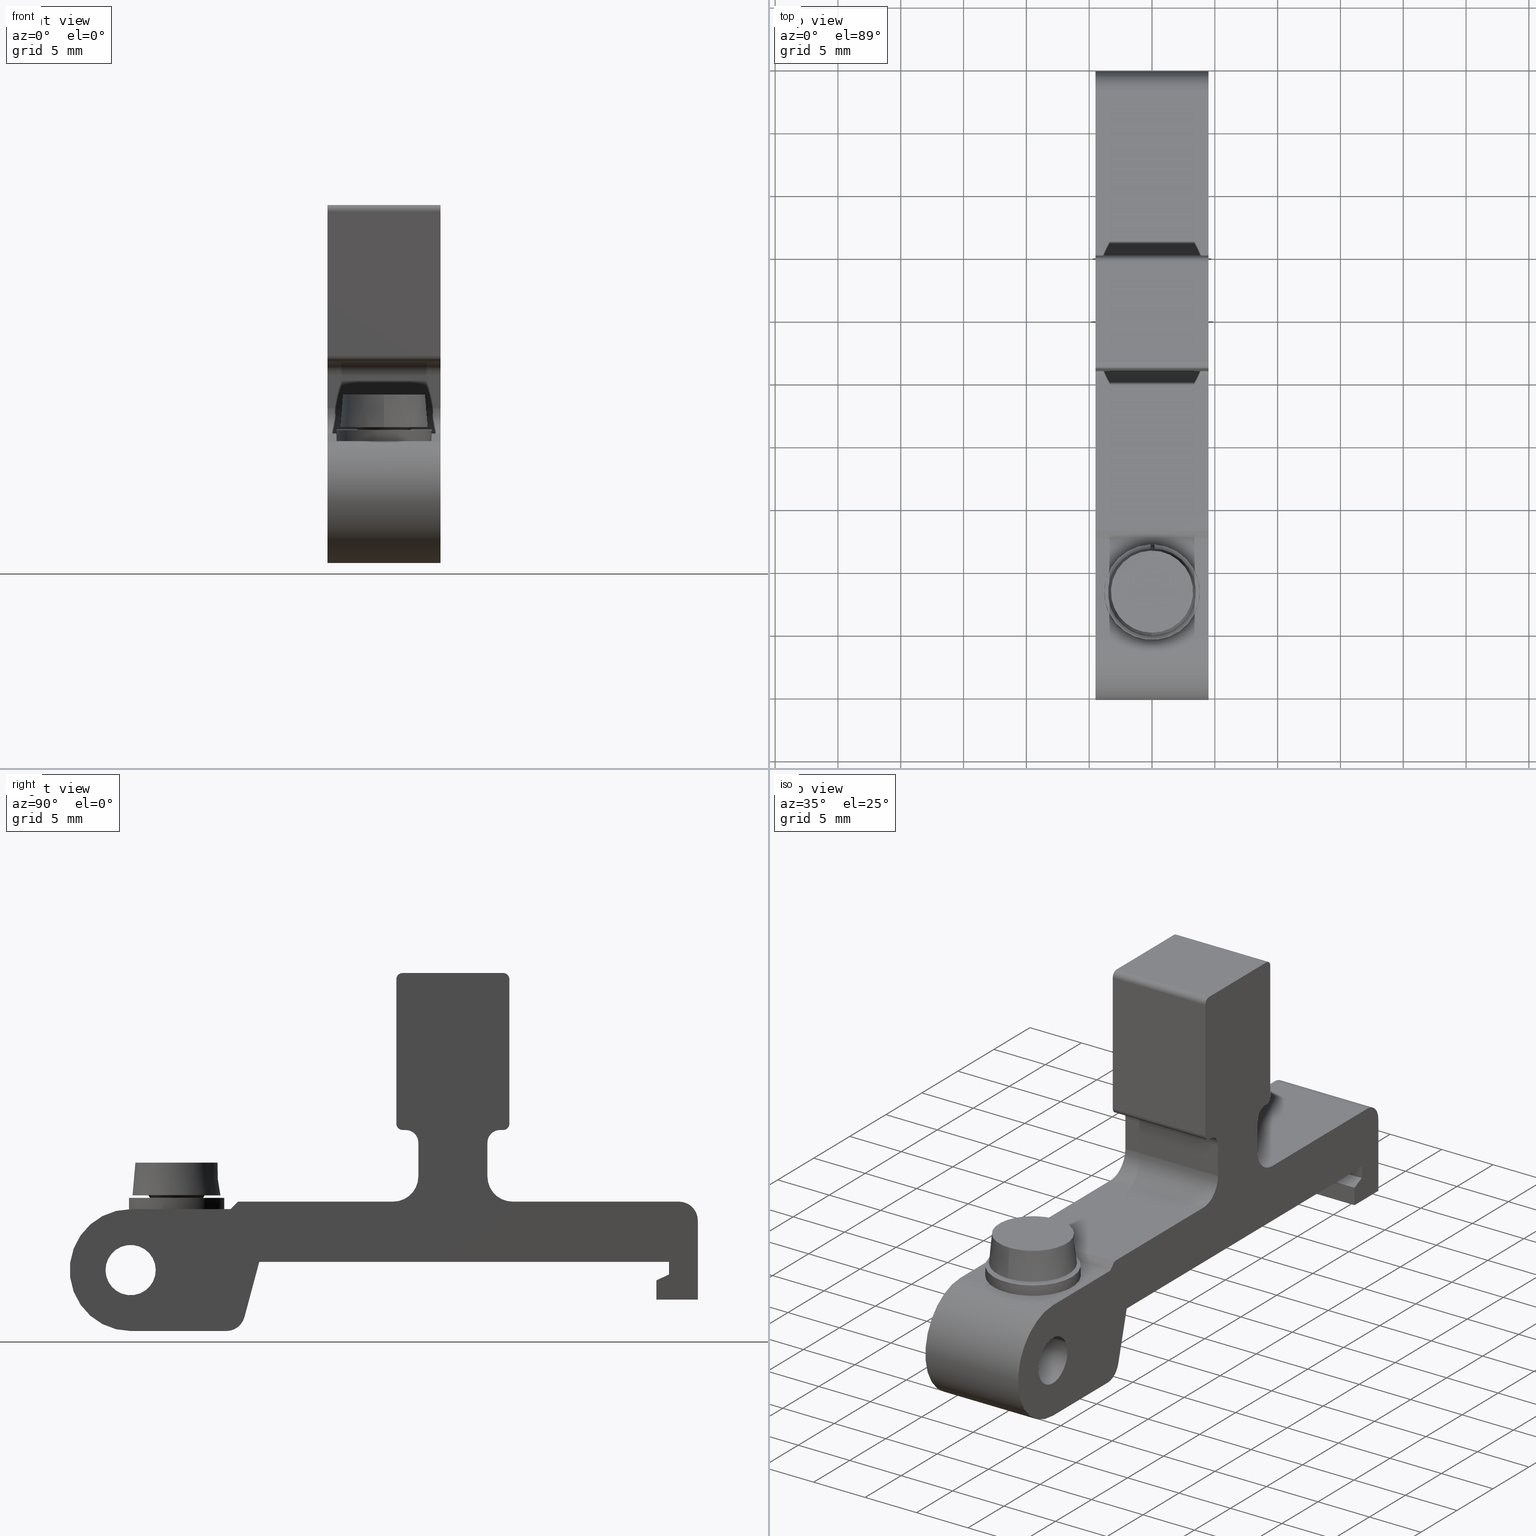
[diagram: canonical four-view strip — front | top / right | iso, engineering-drawing reading convention]
A machine part, canonical four-view strip (front | top / right | iso — engineering-drawing reading convention). The complete STEP part file that produces these views, byte-faithful:
ISO-10303-21;
HEADER;
/* Generated by software containing ST-Developer
 * from STEP Tools, Inc. (www.steptools.com) 
 */

FILE_DESCRIPTION(
/* description */ (''),
/* implementation_level */ '2;1');

FILE_NAME(
/* name */ 
'S:\\Konstruktionszeichnungen\\Architektur-Files\\STEP\\30370.stp',
/* time_stamp */ '2025-09-19T11:27:07+02:00',
/* author */ ('wisselmann'),
/* organization */ (''),
/* preprocessor_version */ 'ST-DEVELOPER v17.2',
/* originating_system */ 'Autodesk Inventor 2019',
/* authorisation */ '');

FILE_SCHEMA (('CONFIG_CONTROL_DESIGN'));
ENDSEC;

DATA;
#10=MECHANICAL_DESIGN_GEOMETRIC_PRESENTATION_REPRESENTATION('',(#52,#53,
#54,#55,#56,#57,#58,#59,#60,#61,#62,#63,#64,#65,#66,#67,#68,#69,#70,#71,
#72,#73,#74,#75,#76,#77,#78,#79,#80,#81,#82,#83,#84,#85,#86,#87,#88,#89,
#90,#91,#92),#1473);
#11=SHAPE_REPRESENTATION_RELATIONSHIP('SRR','None',#1480,#12);
#12=ADVANCED_BREP_SHAPE_REPRESENTATION('',(#13),#1472);
#13=MANIFOLD_SOLID_BREP('Volumenk\X\F6rper1',#872);
#14=ELLIPSE('',#936,28.4407723324139,2.2);
#15=ELLIPSE('',#937,49.1249703923512,3.8);
#16=ELLIPSE('',#940,28.4407723324139,2.2);
#17=ELLIPSE('',#942,49.1249703923512,3.8);
#18=CONICAL_SURFACE('',#921,3.3862647374163,0.0872664625997157);
#19=CONICAL_SURFACE('',#925,2.0134468749127,0.577773645929941);
#20=CONICAL_SURFACE('',#933,1.892625,0.297670535350328);
#21=FACE_BOUND('',#140,.T.);
#22=FACE_BOUND('',#151,.T.);
#23=FACE_BOUND('',#164,.T.);
#24=FACE_BOUND('',#183,.T.);
#25=PLANE('',#895);
#26=PLANE('',#896);
#27=PLANE('',#910);
#28=PLANE('',#913);
#29=PLANE('',#916);
#30=PLANE('',#917);
#31=PLANE('',#918);
#32=PLANE('',#923);
#33=PLANE('',#928);
#34=PLANE('',#931);
#35=PLANE('',#935);
#36=PLANE('',#941);
#37=PLANE('',#948);
#38=PLANE('',#951);
#39=PLANE('',#952);
#40=PLANE('',#953);
#41=PLANE('',#956);
#42=PLANE('',#959);
#43=PLANE('',#962);
#44=PLANE('',#965);
#45=PLANE('',#968);
#46=PLANE('',#969);
#47=PLANE('',#970);
#48=PLANE('',#971);
#49=PLANE('',#972);
#50=PLANE('',#975);
#51=PLANE('',#976);
#52=STYLED_ITEM('',(#1490),#829);
#53=STYLED_ITEM('',(#1490),#830);
#54=STYLED_ITEM('',(#1490),#832);
#55=STYLED_ITEM('',(#1490),#834);
#56=STYLED_ITEM('',(#1490),#836);
#57=STYLED_ITEM('',(#1490),#837);
#58=STYLED_ITEM('',(#1491),#838);
#59=STYLED_ITEM('',(#1491),#839);
#60=STYLED_ITEM('',(#1491),#840);
#61=STYLED_ITEM('',(#1491),#841);
#62=STYLED_ITEM('',(#1491),#842);
#63=STYLED_ITEM('',(#1491),#843);
#64=STYLED_ITEM('',(#1491),#844);
#65=STYLED_ITEM('',(#1491),#845);
#66=STYLED_ITEM('',(#1491),#846);
#67=STYLED_ITEM('',(#1491),#847);
#68=STYLED_ITEM('',(#1491),#848);
#69=STYLED_ITEM('',(#1490),#849);
#70=STYLED_ITEM('',(#1490),#850);
#71=STYLED_ITEM('',(#1490),#851);
#72=STYLED_ITEM('',(#1490),#852);
#73=STYLED_ITEM('',(#1490),#853);
#74=STYLED_ITEM('',(#1490),#854);
#75=STYLED_ITEM('',(#1490),#855);
#76=STYLED_ITEM('',(#1490),#856);
#77=STYLED_ITEM('',(#1490),#857);
#78=STYLED_ITEM('',(#1490),#858);
#79=STYLED_ITEM('',(#1490),#859);
#80=STYLED_ITEM('',(#1490),#860);
#81=STYLED_ITEM('',(#1490),#861);
#82=STYLED_ITEM('',(#1490),#862);
#83=STYLED_ITEM('',(#1490),#863);
#84=STYLED_ITEM('',(#1490),#864);
#85=STYLED_ITEM('',(#1490),#865);
#86=STYLED_ITEM('',(#1490),#866);
#87=STYLED_ITEM('',(#1490),#867);
#88=STYLED_ITEM('',(#1490),#868);
#89=STYLED_ITEM('',(#1490),#869);
#90=STYLED_ITEM('',(#1490),#870);
#91=STYLED_ITEM('',(#1490),#871);
#92=STYLED_ITEM('',(#1489),#13);
#93=FACE_OUTER_BOUND('',#137,.T.);
#94=FACE_OUTER_BOUND('',#138,.T.);
#95=FACE_OUTER_BOUND('',#139,.T.);
#96=FACE_OUTER_BOUND('',#141,.T.);
#97=FACE_OUTER_BOUND('',#142,.T.);
#98=FACE_OUTER_BOUND('',#143,.T.);
#99=FACE_OUTER_BOUND('',#144,.T.);
#100=FACE_OUTER_BOUND('',#145,.T.);
#101=FACE_OUTER_BOUND('',#146,.T.);
#102=FACE_OUTER_BOUND('',#147,.T.);
#103=FACE_OUTER_BOUND('',#148,.T.);
#104=FACE_OUTER_BOUND('',#149,.T.);
#105=FACE_OUTER_BOUND('',#150,.T.);
#106=FACE_OUTER_BOUND('',#152,.T.);
#107=FACE_OUTER_BOUND('',#153,.T.);
#108=FACE_OUTER_BOUND('',#154,.T.);
#109=FACE_OUTER_BOUND('',#155,.T.);
#110=FACE_OUTER_BOUND('',#156,.T.);
#111=FACE_OUTER_BOUND('',#157,.T.);
#112=FACE_OUTER_BOUND('',#158,.T.);
#113=FACE_OUTER_BOUND('',#159,.T.);
#114=FACE_OUTER_BOUND('',#160,.T.);
#115=FACE_OUTER_BOUND('',#161,.T.);
#116=FACE_OUTER_BOUND('',#162,.T.);
#117=FACE_OUTER_BOUND('',#163,.T.);
#118=FACE_OUTER_BOUND('',#165,.T.);
#119=FACE_OUTER_BOUND('',#166,.T.);
#120=FACE_OUTER_BOUND('',#167,.T.);
#121=FACE_OUTER_BOUND('',#168,.T.);
#122=FACE_OUTER_BOUND('',#169,.T.);
#123=FACE_OUTER_BOUND('',#170,.T.);
#124=FACE_OUTER_BOUND('',#171,.T.);
#125=FACE_OUTER_BOUND('',#172,.T.);
#126=FACE_OUTER_BOUND('',#173,.T.);
#127=FACE_OUTER_BOUND('',#174,.T.);
#128=FACE_OUTER_BOUND('',#175,.T.);
#129=FACE_OUTER_BOUND('',#176,.T.);
#130=FACE_OUTER_BOUND('',#177,.T.);
#131=FACE_OUTER_BOUND('',#178,.T.);
#132=FACE_OUTER_BOUND('',#179,.T.);
#133=FACE_OUTER_BOUND('',#180,.T.);
#134=FACE_OUTER_BOUND('',#181,.T.);
#135=FACE_OUTER_BOUND('',#182,.T.);
#136=FACE_OUTER_BOUND('',#184,.T.);
#137=EDGE_LOOP('',(#576,#577,#578,#579));
#138=EDGE_LOOP('',(#580,#581,#582,#583));
#139=EDGE_LOOP('',(#584,#585,#586,#587,#588,#589,#590,#591,#592,#593,#594,
#595,#596,#597,#598,#599,#600,#601,#602,#603,#604,#605,#606,#607,#608,#609,
#610,#611,#612,#613));
#140=EDGE_LOOP('',(#614));
#141=EDGE_LOOP('',(#615,#616,#617,#618));
#142=EDGE_LOOP('',(#619,#620,#621,#622));
#143=EDGE_LOOP('',(#623,#624,#625,#626));
#144=EDGE_LOOP('',(#627,#628,#629,#630));
#145=EDGE_LOOP('',(#631,#632,#633,#634));
#146=EDGE_LOOP('',(#635,#636,#637,#638));
#147=EDGE_LOOP('',(#639,#640,#641,#642));
#148=EDGE_LOOP('',(#643,#644));
#149=EDGE_LOOP('',(#645,#646,#647,#648,#649));
#150=EDGE_LOOP('',(#650));
#151=EDGE_LOOP('',(#651));
#152=EDGE_LOOP('',(#652,#653,#654,#655,#656));
#153=EDGE_LOOP('',(#657,#658,#659,#660));
#154=EDGE_LOOP('',(#661,#662));
#155=EDGE_LOOP('',(#663,#664,#665,#666,#667));
#156=EDGE_LOOP('',(#668,#669,#670,#671));
#157=EDGE_LOOP('',(#672,#673,#674,#675));
#158=EDGE_LOOP('',(#676,#677,#678,#679));
#159=EDGE_LOOP('',(#680,#681,#682,#683,#684,#685));
#160=EDGE_LOOP('',(#686,#687,#688,#689));
#161=EDGE_LOOP('',(#690,#691,#692,#693));
#162=EDGE_LOOP('',(#694,#695,#696,#697,#698,#699));
#163=EDGE_LOOP('',(#700,#701,#702,#703,#704,#705,#706,#707,#708,#709));
#164=EDGE_LOOP('',(#710));
#165=EDGE_LOOP('',(#711,#712,#713,#714));
#166=EDGE_LOOP('',(#715,#716,#717,#718));
#167=EDGE_LOOP('',(#719,#720,#721,#722));
#168=EDGE_LOOP('',(#723,#724,#725,#726));
#169=EDGE_LOOP('',(#727,#728,#729,#730));
#170=EDGE_LOOP('',(#731,#732,#733,#734));
#171=EDGE_LOOP('',(#735,#736,#737,#738));
#172=EDGE_LOOP('',(#739,#740,#741,#742));
#173=EDGE_LOOP('',(#743,#744,#745,#746));
#174=EDGE_LOOP('',(#747,#748,#749,#750));
#175=EDGE_LOOP('',(#751,#752,#753,#754));
#176=EDGE_LOOP('',(#755,#756,#757,#758));
#177=EDGE_LOOP('',(#759,#760,#761,#762));
#178=EDGE_LOOP('',(#763,#764,#765,#766));
#179=EDGE_LOOP('',(#767,#768,#769,#770));
#180=EDGE_LOOP('',(#771,#772,#773,#774));
#181=EDGE_LOOP('',(#775,#776,#777,#778));
#182=EDGE_LOOP('',(#779,#780,#781,#782,#783,#784,#785,#786,#787,#788,#789,
#790,#791,#792,#793,#794,#795,#796,#797,#798,#799,#800,#801,#802,#803,#804,
#805,#806,#807,#808));
#183=EDGE_LOOP('',(#809));
#184=EDGE_LOOP('',(#810,#811,#812,#813));
#185=LINE('',#1233,#263);
#186=LINE('',#1236,#264);
#187=LINE('',#1239,#265);
#188=LINE('',#1241,#266);
#189=LINE('',#1242,#267);
#190=LINE('',#1245,#268);
#191=LINE('',#1249,#269);
#192=LINE('',#1253,#270);
#193=LINE('',#1257,#271);
#194=LINE('',#1259,#272);
#195=LINE('',#1261,#273);
#196=LINE('',#1263,#274);
#197=LINE('',#1265,#275);
#198=LINE('',#1267,#276);
#199=LINE('',#1269,#277);
#200=LINE('',#1273,#278);
#201=LINE('',#1277,#279);
#202=LINE('',#1279,#280);
#203=LINE('',#1281,#281);
#204=LINE('',#1285,#282);
#205=LINE('',#1289,#283);
#206=LINE('',#1293,#284);
#207=LINE('',#1297,#285);
#208=LINE('',#1303,#286);
#209=LINE('',#1306,#287);
#210=LINE('',#1309,#288);
#211=LINE('',#1310,#289);
#212=LINE('',#1313,#290);
#213=LINE('',#1317,#291);
#214=LINE('',#1318,#292);
#215=LINE('',#1321,#293);
#216=LINE('',#1324,#294);
#217=LINE('',#1327,#295);
#218=LINE('',#1329,#296);
#219=LINE('',#1330,#297);
#220=LINE('',#1338,#298);
#221=LINE('',#1345,#299);
#222=LINE('',#1352,#300);
#223=LINE('',#1356,#301);
#224=LINE('',#1361,#302);
#225=LINE('',#1365,#303);
#226=LINE('',#1370,#304);
#227=LINE('',#1379,#305);
#228=LINE('',#1387,#306);
#229=LINE('',#1390,#307);
#230=LINE('',#1392,#308);
#231=LINE('',#1393,#309);
#232=LINE('',#1397,#310);
#233=LINE('',#1398,#311);
#234=LINE('',#1401,#312);
#235=LINE('',#1402,#313);
#236=LINE('',#1405,#314);
#237=LINE('',#1406,#315);
#238=LINE('',#1409,#316);
#239=LINE('',#1410,#317);
#240=LINE('',#1414,#318);
#241=LINE('',#1417,#319);
#242=LINE('',#1418,#320);
#243=LINE('',#1423,#321);
#244=LINE('',#1424,#322);
#245=LINE('',#1428,#323);
#246=LINE('',#1431,#324);
#247=LINE('',#1432,#325);
#248=LINE('',#1436,#326);
#249=LINE('',#1439,#327);
#250=LINE('',#1440,#328);
#251=LINE('',#1444,#329);
#252=LINE('',#1447,#330);
#253=LINE('',#1448,#331);
#254=LINE('',#1451,#332);
#255=LINE('',#1452,#333);
#256=LINE('',#1455,#334);
#257=LINE('',#1456,#335);
#258=LINE('',#1459,#336);
#259=LINE('',#1460,#337);
#260=LINE('',#1463,#338);
#261=LINE('',#1464,#339);
#262=LINE('',#1468,#340);
#263=VECTOR('',#983,10.);
#264=VECTOR('',#986,10.);
#265=VECTOR('',#989,10.);
#266=VECTOR('',#990,10.);
#267=VECTOR('',#991,10.);
#268=VECTOR('',#994,10.);
#269=VECTOR('',#997,10.);
#270=VECTOR('',#1000,10.);
#271=VECTOR('',#1003,10.);
#272=VECTOR('',#1004,10.);
#273=VECTOR('',#1005,10.);
#274=VECTOR('',#1006,10.);
#275=VECTOR('',#1007,10.);
#276=VECTOR('',#1008,10.);
#277=VECTOR('',#1009,10.);
#278=VECTOR('',#1012,10.);
#279=VECTOR('',#1015,10.);
#280=VECTOR('',#1016,10.);
#281=VECTOR('',#1017,10.);
#282=VECTOR('',#1020,10.);
#283=VECTOR('',#1023,10.);
#284=VECTOR('',#1026,10.);
#285=VECTOR('',#1029,10.);
#286=VECTOR('',#1036,10.);
#287=VECTOR('',#1039,10.);
#288=VECTOR('',#1042,10.);
#289=VECTOR('',#1043,10.);
#290=VECTOR('',#1046,10.);
#291=VECTOR('',#1051,10.);
#292=VECTOR('',#1052,10.);
#293=VECTOR('',#1055,10.);
#294=VECTOR('',#1060,10.);
#295=VECTOR('',#1063,10.);
#296=VECTOR('',#1064,10.);
#297=VECTOR('',#1065,10.);
#298=VECTOR('',#1074,3.3862647374163);
#299=VECTOR('',#1083,2.0134468749127);
#300=VECTOR('',#1090,10.);
#301=VECTOR('',#1093,10.);
#302=VECTOR('',#1098,10.);
#303=VECTOR('',#1103,1.892625);
#304=VECTOR('',#1108,10.);
#305=VECTOR('',#1121,10.);
#306=VECTOR('',#1134,2.5);
#307=VECTOR('',#1137,10.);
#308=VECTOR('',#1138,10.);
#309=VECTOR('',#1139,10.);
#310=VECTOR('',#1144,10.);
#311=VECTOR('',#1145,10.);
#312=VECTOR('',#1148,10.);
#313=VECTOR('',#1149,10.);
#314=VECTOR('',#1152,10.);
#315=VECTOR('',#1153,10.);
#316=VECTOR('',#1156,10.);
#317=VECTOR('',#1157,10.);
#318=VECTOR('',#1162,10.);
#319=VECTOR('',#1165,10.);
#320=VECTOR('',#1166,10.);
#321=VECTOR('',#1173,10.);
#322=VECTOR('',#1174,10.);
#323=VECTOR('',#1179,10.);
#324=VECTOR('',#1182,10.);
#325=VECTOR('',#1183,10.);
#326=VECTOR('',#1188,10.);
#327=VECTOR('',#1191,10.);
#328=VECTOR('',#1192,10.);
#329=VECTOR('',#1197,10.);
#330=VECTOR('',#1200,10.);
#331=VECTOR('',#1201,10.);
#332=VECTOR('',#1204,10.);
#333=VECTOR('',#1205,10.);
#334=VECTOR('',#1208,10.);
#335=VECTOR('',#1209,10.);
#336=VECTOR('',#1212,10.);
#337=VECTOR('',#1213,10.);
#338=VECTOR('',#1216,10.);
#339=VECTOR('',#1217,10.);
#340=VECTOR('',#1224,10.);
#341=CIRCLE('',#893,0.5);
#342=CIRCLE('',#894,0.5);
#343=CIRCLE('',#897,1.00000000000001);
#344=CIRCLE('',#898,2.);
#345=CIRCLE('',#899,1.50000000000001);
#346=CIRCLE('',#900,1.5);
#347=CIRCLE('',#901,4.85);
#348=CIRCLE('',#902,2.);
#349=CIRCLE('',#903,1.00000000000001);
#350=CIRCLE('',#904,0.5);
#351=CIRCLE('',#905,0.5);
#352=CIRCLE('',#906,0.5);
#353=CIRCLE('',#907,2.);
#354=CIRCLE('',#909,0.5);
#355=CIRCLE('',#912,0.5);
#356=CIRCLE('',#915,0.5);
#357=CIRCLE('',#919,3.2725294748326);
#358=CIRCLE('',#920,3.2725294748326);
#359=CIRCLE('',#922,3.5);
#360=CIRCLE('',#924,2.2416437498254);
#361=CIRCLE('',#926,1.78525);
#362=CIRCLE('',#927,1.78525);
#363=CIRCLE('',#929,2.2);
#364=CIRCLE('',#930,3.8);
#365=CIRCLE('',#932,3.8);
#366=CIRCLE('',#934,1.90796428571429);
#367=CIRCLE('',#939,2.2);
#368=CIRCLE('',#944,3.8);
#369=CIRCLE('',#945,3.8);
#370=CIRCLE('',#947,2.);
#371=CIRCLE('',#950,4.85);
#372=CIRCLE('',#955,2.);
#373=CIRCLE('',#958,1.00000000000001);
#374=CIRCLE('',#961,1.00000000000001);
#375=CIRCLE('',#964,2.);
#376=CIRCLE('',#967,1.50000000000001);
#377=CIRCLE('',#974,1.5);
#378=VERTEX_POINT('',#1229);
#379=VERTEX_POINT('',#1230);
#380=VERTEX_POINT('',#1232);
#381=VERTEX_POINT('',#1234);
#382=VERTEX_POINT('',#1238);
#383=VERTEX_POINT('',#1240);
#384=VERTEX_POINT('',#1244);
#385=VERTEX_POINT('',#1246);
#386=VERTEX_POINT('',#1248);
#387=VERTEX_POINT('',#1250);
#388=VERTEX_POINT('',#1252);
#389=VERTEX_POINT('',#1254);
#390=VERTEX_POINT('',#1256);
#391=VERTEX_POINT('',#1258);
#392=VERTEX_POINT('',#1260);
#393=VERTEX_POINT('',#1262);
#394=VERTEX_POINT('',#1264);
#395=VERTEX_POINT('',#1266);
#396=VERTEX_POINT('',#1268);
#397=VERTEX_POINT('',#1270);
#398=VERTEX_POINT('',#1272);
#399=VERTEX_POINT('',#1274);
#400=VERTEX_POINT('',#1276);
#401=VERTEX_POINT('',#1278);
#402=VERTEX_POINT('',#1280);
#403=VERTEX_POINT('',#1282);
#404=VERTEX_POINT('',#1284);
#405=VERTEX_POINT('',#1286);
#406=VERTEX_POINT('',#1288);
#407=VERTEX_POINT('',#1290);
#408=VERTEX_POINT('',#1292);
#409=VERTEX_POINT('',#1294);
#410=VERTEX_POINT('',#1296);
#411=VERTEX_POINT('',#1299);
#412=VERTEX_POINT('',#1302);
#413=VERTEX_POINT('',#1304);
#414=VERTEX_POINT('',#1308);
#415=VERTEX_POINT('',#1312);
#416=VERTEX_POINT('',#1316);
#417=VERTEX_POINT('',#1320);
#418=VERTEX_POINT('',#1326);
#419=VERTEX_POINT('',#1328);
#420=VERTEX_POINT('',#1332);
#421=VERTEX_POINT('',#1333);
#422=VERTEX_POINT('',#1337);
#423=VERTEX_POINT('',#1341);
#424=VERTEX_POINT('',#1344);
#425=VERTEX_POINT('',#1346);
#426=VERTEX_POINT('',#1350);
#427=VERTEX_POINT('',#1351);
#428=VERTEX_POINT('',#1353);
#429=VERTEX_POINT('',#1355);
#430=VERTEX_POINT('',#1359);
#431=VERTEX_POINT('',#1360);
#432=VERTEX_POINT('',#1364);
#433=VERTEX_POINT('',#1368);
#434=VERTEX_POINT('',#1369);
#435=VERTEX_POINT('',#1374);
#436=VERTEX_POINT('',#1378);
#437=VERTEX_POINT('',#1385);
#438=VERTEX_POINT('',#1389);
#439=VERTEX_POINT('',#1391);
#440=VERTEX_POINT('',#1395);
#441=VERTEX_POINT('',#1400);
#442=VERTEX_POINT('',#1404);
#443=VERTEX_POINT('',#1408);
#444=VERTEX_POINT('',#1412);
#445=VERTEX_POINT('',#1416);
#446=VERTEX_POINT('',#1422);
#447=VERTEX_POINT('',#1426);
#448=VERTEX_POINT('',#1430);
#449=VERTEX_POINT('',#1434);
#450=VERTEX_POINT('',#1438);
#451=VERTEX_POINT('',#1442);
#452=VERTEX_POINT('',#1446);
#453=VERTEX_POINT('',#1450);
#454=VERTEX_POINT('',#1454);
#455=VERTEX_POINT('',#1458);
#456=VERTEX_POINT('',#1462);
#457=EDGE_CURVE('',#378,#379,#341,.T.);
#458=EDGE_CURVE('',#379,#380,#185,.T.);
#459=EDGE_CURVE('',#380,#381,#342,.T.);
#460=EDGE_CURVE('',#381,#378,#186,.T.);
#461=EDGE_CURVE('',#382,#379,#187,.T.);
#462=EDGE_CURVE('',#383,#382,#188,.T.);
#463=EDGE_CURVE('',#380,#383,#189,.T.);
#464=EDGE_CURVE('',#378,#384,#190,.T.);
#465=EDGE_CURVE('',#384,#385,#343,.T.);
#466=EDGE_CURVE('',#385,#386,#191,.T.);
#467=EDGE_CURVE('',#386,#387,#344,.T.);
#468=EDGE_CURVE('',#387,#388,#192,.T.);
#469=EDGE_CURVE('',#388,#389,#345,.T.);
#470=EDGE_CURVE('',#389,#390,#193,.T.);
#471=EDGE_CURVE('',#390,#391,#194,.T.);
#472=EDGE_CURVE('',#391,#392,#195,.T.);
#473=EDGE_CURVE('',#392,#393,#196,.T.);
#474=EDGE_CURVE('',#393,#394,#197,.T.);
#475=EDGE_CURVE('',#394,#395,#198,.T.);
#476=EDGE_CURVE('',#395,#396,#199,.T.);
#477=EDGE_CURVE('',#396,#397,#346,.T.);
#478=EDGE_CURVE('',#397,#398,#200,.T.);
#479=EDGE_CURVE('',#398,#399,#347,.T.);
#480=EDGE_CURVE('',#399,#400,#201,.T.);
#481=EDGE_CURVE('',#400,#401,#202,.T.);
#482=EDGE_CURVE('',#401,#402,#203,.T.);
#483=EDGE_CURVE('',#402,#403,#348,.T.);
#484=EDGE_CURVE('',#403,#404,#204,.T.);
#485=EDGE_CURVE('',#404,#405,#349,.T.);
#486=EDGE_CURVE('',#405,#406,#205,.T.);
#487=EDGE_CURVE('',#407,#406,#350,.T.);
#488=EDGE_CURVE('',#407,#408,#206,.T.);
#489=EDGE_CURVE('',#409,#408,#351,.T.);
#490=EDGE_CURVE('',#409,#410,#207,.T.);
#491=EDGE_CURVE('',#382,#410,#352,.T.);
#492=EDGE_CURVE('',#411,#411,#353,.F.);
#493=EDGE_CURVE('',#406,#412,#208,.T.);
#494=EDGE_CURVE('',#412,#413,#354,.T.);
#495=EDGE_CURVE('',#413,#407,#209,.T.);
#496=EDGE_CURVE('',#405,#414,#210,.T.);
#497=EDGE_CURVE('',#412,#414,#211,.T.);
#498=EDGE_CURVE('',#410,#415,#212,.T.);
#499=EDGE_CURVE('',#415,#383,#355,.T.);
#500=EDGE_CURVE('',#416,#409,#213,.T.);
#501=EDGE_CURVE('',#415,#416,#214,.T.);
#502=EDGE_CURVE('',#408,#417,#215,.T.);
#503=EDGE_CURVE('',#417,#416,#356,.T.);
#504=EDGE_CURVE('',#417,#413,#216,.T.);
#505=EDGE_CURVE('',#418,#395,#217,.T.);
#506=EDGE_CURVE('',#419,#418,#218,.T.);
#507=EDGE_CURVE('',#396,#419,#219,.T.);
#508=EDGE_CURVE('',#420,#421,#357,.T.);
#509=EDGE_CURVE('',#421,#420,#358,.T.);
#510=EDGE_CURVE('',#421,#422,#220,.T.);
#511=EDGE_CURVE('',#422,#422,#359,.T.);
#512=EDGE_CURVE('',#423,#423,#360,.T.);
#513=EDGE_CURVE('',#423,#424,#221,.T.);
#514=EDGE_CURVE('',#425,#424,#361,.T.);
#515=EDGE_CURVE('',#424,#425,#362,.T.);
#516=EDGE_CURVE('',#426,#427,#222,.T.);
#517=EDGE_CURVE('',#428,#427,#363,.T.);
#518=EDGE_CURVE('',#428,#429,#223,.T.);
#519=EDGE_CURVE('',#429,#426,#364,.T.);
#520=EDGE_CURVE('',#430,#431,#224,.T.);
#521=EDGE_CURVE('',#431,#430,#365,.T.);
#522=EDGE_CURVE('',#424,#432,#225,.T.);
#523=EDGE_CURVE('',#432,#432,#366,.T.);
#524=EDGE_CURVE('',#433,#434,#226,.T.);
#525=EDGE_CURVE('',#427,#433,#14,.T.);
#526=EDGE_CURVE('',#434,#426,#15,.T.);
#527=EDGE_CURVE('',#435,#433,#367,.T.);
#528=EDGE_CURVE('',#435,#428,#16,.T.);
#529=EDGE_CURVE('',#436,#435,#227,.T.);
#530=EDGE_CURVE('',#429,#436,#17,.T.);
#531=EDGE_CURVE('',#431,#436,#368,.T.);
#532=EDGE_CURVE('',#434,#430,#369,.T.);
#533=EDGE_CURVE('',#437,#437,#370,.F.);
#534=EDGE_CURVE('',#437,#411,#228,.T.);
#535=EDGE_CURVE('',#397,#438,#229,.T.);
#536=EDGE_CURVE('',#439,#438,#230,.T.);
#537=EDGE_CURVE('',#398,#439,#231,.T.);
#538=EDGE_CURVE('',#440,#439,#371,.T.);
#539=EDGE_CURVE('',#440,#430,#232,.T.);
#540=EDGE_CURVE('',#431,#399,#233,.T.);
#541=EDGE_CURVE('',#441,#440,#234,.T.);
#542=EDGE_CURVE('',#400,#441,#235,.T.);
#543=EDGE_CURVE('',#442,#441,#236,.T.);
#544=EDGE_CURVE('',#401,#442,#237,.T.);
#545=EDGE_CURVE('',#443,#442,#238,.T.);
#546=EDGE_CURVE('',#402,#443,#239,.T.);
#547=EDGE_CURVE('',#444,#443,#372,.T.);
#548=EDGE_CURVE('',#403,#444,#240,.T.);
#549=EDGE_CURVE('',#445,#444,#241,.T.);
#550=EDGE_CURVE('',#404,#445,#242,.T.);
#551=EDGE_CURVE('',#414,#445,#373,.T.);
#552=EDGE_CURVE('',#446,#381,#243,.T.);
#553=EDGE_CURVE('',#384,#446,#244,.T.);
#554=EDGE_CURVE('',#447,#446,#374,.T.);
#555=EDGE_CURVE('',#385,#447,#245,.T.);
#556=EDGE_CURVE('',#448,#447,#246,.T.);
#557=EDGE_CURVE('',#386,#448,#247,.T.);
#558=EDGE_CURVE('',#449,#448,#375,.T.);
#559=EDGE_CURVE('',#387,#449,#248,.T.);
#560=EDGE_CURVE('',#450,#449,#249,.T.);
#561=EDGE_CURVE('',#388,#450,#250,.T.);
#562=EDGE_CURVE('',#451,#450,#376,.T.);
#563=EDGE_CURVE('',#389,#451,#251,.T.);
#564=EDGE_CURVE('',#452,#451,#252,.T.);
#565=EDGE_CURVE('',#452,#390,#253,.T.);
#566=EDGE_CURVE('',#453,#452,#254,.T.);
#567=EDGE_CURVE('',#453,#391,#255,.T.);
#568=EDGE_CURVE('',#454,#453,#256,.T.);
#569=EDGE_CURVE('',#454,#392,#257,.T.);
#570=EDGE_CURVE('',#455,#454,#258,.T.);
#571=EDGE_CURVE('',#393,#455,#259,.T.);
#572=EDGE_CURVE('',#456,#394,#260,.T.);
#573=EDGE_CURVE('',#456,#455,#261,.T.);
#574=EDGE_CURVE('',#438,#419,#377,.T.);
#575=EDGE_CURVE('',#456,#418,#262,.T.);
#576=ORIENTED_EDGE('',*,*,#457,.T.);
#577=ORIENTED_EDGE('',*,*,#458,.T.);
#578=ORIENTED_EDGE('',*,*,#459,.T.);
#579=ORIENTED_EDGE('',*,*,#460,.T.);
#580=ORIENTED_EDGE('',*,*,#458,.F.);
#581=ORIENTED_EDGE('',*,*,#461,.F.);
#582=ORIENTED_EDGE('',*,*,#462,.F.);
#583=ORIENTED_EDGE('',*,*,#463,.F.);
#584=ORIENTED_EDGE('',*,*,#457,.F.);
#585=ORIENTED_EDGE('',*,*,#464,.T.);
#586=ORIENTED_EDGE('',*,*,#465,.T.);
#587=ORIENTED_EDGE('',*,*,#466,.T.);
#588=ORIENTED_EDGE('',*,*,#467,.T.);
#589=ORIENTED_EDGE('',*,*,#468,.T.);
#590=ORIENTED_EDGE('',*,*,#469,.T.);
#591=ORIENTED_EDGE('',*,*,#470,.T.);
#592=ORIENTED_EDGE('',*,*,#471,.T.);
#593=ORIENTED_EDGE('',*,*,#472,.T.);
#594=ORIENTED_EDGE('',*,*,#473,.T.);
#595=ORIENTED_EDGE('',*,*,#474,.T.);
#596=ORIENTED_EDGE('',*,*,#475,.T.);
#597=ORIENTED_EDGE('',*,*,#476,.T.);
#598=ORIENTED_EDGE('',*,*,#477,.T.);
#599=ORIENTED_EDGE('',*,*,#478,.T.);
#600=ORIENTED_EDGE('',*,*,#479,.T.);
#601=ORIENTED_EDGE('',*,*,#480,.T.);
#602=ORIENTED_EDGE('',*,*,#481,.T.);
#603=ORIENTED_EDGE('',*,*,#482,.T.);
#604=ORIENTED_EDGE('',*,*,#483,.T.);
#605=ORIENTED_EDGE('',*,*,#484,.T.);
#606=ORIENTED_EDGE('',*,*,#485,.T.);
#607=ORIENTED_EDGE('',*,*,#486,.T.);
#608=ORIENTED_EDGE('',*,*,#487,.F.);
#609=ORIENTED_EDGE('',*,*,#488,.T.);
#610=ORIENTED_EDGE('',*,*,#489,.F.);
#611=ORIENTED_EDGE('',*,*,#490,.T.);
#612=ORIENTED_EDGE('',*,*,#491,.F.);
#613=ORIENTED_EDGE('',*,*,#461,.T.);
#614=ORIENTED_EDGE('',*,*,#492,.T.);
#615=ORIENTED_EDGE('',*,*,#487,.T.);
#616=ORIENTED_EDGE('',*,*,#493,.T.);
#617=ORIENTED_EDGE('',*,*,#494,.T.);
#618=ORIENTED_EDGE('',*,*,#495,.T.);
#619=ORIENTED_EDGE('',*,*,#493,.F.);
#620=ORIENTED_EDGE('',*,*,#486,.F.);
#621=ORIENTED_EDGE('',*,*,#496,.T.);
#622=ORIENTED_EDGE('',*,*,#497,.F.);
#623=ORIENTED_EDGE('',*,*,#491,.T.);
#624=ORIENTED_EDGE('',*,*,#498,.T.);
#625=ORIENTED_EDGE('',*,*,#499,.T.);
#626=ORIENTED_EDGE('',*,*,#462,.T.);
#627=ORIENTED_EDGE('',*,*,#498,.F.);
#628=ORIENTED_EDGE('',*,*,#490,.F.);
#629=ORIENTED_EDGE('',*,*,#500,.F.);
#630=ORIENTED_EDGE('',*,*,#501,.F.);
#631=ORIENTED_EDGE('',*,*,#489,.T.);
#632=ORIENTED_EDGE('',*,*,#502,.T.);
#633=ORIENTED_EDGE('',*,*,#503,.T.);
#634=ORIENTED_EDGE('',*,*,#500,.T.);
#635=ORIENTED_EDGE('',*,*,#495,.F.);
#636=ORIENTED_EDGE('',*,*,#504,.F.);
#637=ORIENTED_EDGE('',*,*,#502,.F.);
#638=ORIENTED_EDGE('',*,*,#488,.F.);
#639=ORIENTED_EDGE('',*,*,#505,.F.);
#640=ORIENTED_EDGE('',*,*,#506,.F.);
#641=ORIENTED_EDGE('',*,*,#507,.F.);
#642=ORIENTED_EDGE('',*,*,#476,.F.);
#643=ORIENTED_EDGE('',*,*,#508,.T.);
#644=ORIENTED_EDGE('',*,*,#509,.T.);
#645=ORIENTED_EDGE('',*,*,#508,.F.);
#646=ORIENTED_EDGE('',*,*,#509,.F.);
#647=ORIENTED_EDGE('',*,*,#510,.T.);
#648=ORIENTED_EDGE('',*,*,#511,.F.);
#649=ORIENTED_EDGE('',*,*,#510,.F.);
#650=ORIENTED_EDGE('',*,*,#511,.T.);
#651=ORIENTED_EDGE('',*,*,#512,.T.);
#652=ORIENTED_EDGE('',*,*,#512,.F.);
#653=ORIENTED_EDGE('',*,*,#513,.T.);
#654=ORIENTED_EDGE('',*,*,#514,.F.);
#655=ORIENTED_EDGE('',*,*,#515,.F.);
#656=ORIENTED_EDGE('',*,*,#513,.F.);
#657=ORIENTED_EDGE('',*,*,#516,.T.);
#658=ORIENTED_EDGE('',*,*,#517,.F.);
#659=ORIENTED_EDGE('',*,*,#518,.T.);
#660=ORIENTED_EDGE('',*,*,#519,.T.);
#661=ORIENTED_EDGE('',*,*,#520,.F.);
#662=ORIENTED_EDGE('',*,*,#521,.F.);
#663=ORIENTED_EDGE('',*,*,#514,.T.);
#664=ORIENTED_EDGE('',*,*,#522,.T.);
#665=ORIENTED_EDGE('',*,*,#523,.F.);
#666=ORIENTED_EDGE('',*,*,#522,.F.);
#667=ORIENTED_EDGE('',*,*,#515,.T.);
#668=ORIENTED_EDGE('',*,*,#524,.F.);
#669=ORIENTED_EDGE('',*,*,#525,.F.);
#670=ORIENTED_EDGE('',*,*,#516,.F.);
#671=ORIENTED_EDGE('',*,*,#526,.F.);
#672=ORIENTED_EDGE('',*,*,#525,.T.);
#673=ORIENTED_EDGE('',*,*,#527,.F.);
#674=ORIENTED_EDGE('',*,*,#528,.T.);
#675=ORIENTED_EDGE('',*,*,#517,.T.);
#676=ORIENTED_EDGE('',*,*,#529,.F.);
#677=ORIENTED_EDGE('',*,*,#530,.F.);
#678=ORIENTED_EDGE('',*,*,#518,.F.);
#679=ORIENTED_EDGE('',*,*,#528,.F.);
#680=ORIENTED_EDGE('',*,*,#526,.T.);
#681=ORIENTED_EDGE('',*,*,#519,.F.);
#682=ORIENTED_EDGE('',*,*,#530,.T.);
#683=ORIENTED_EDGE('',*,*,#531,.F.);
#684=ORIENTED_EDGE('',*,*,#521,.T.);
#685=ORIENTED_EDGE('',*,*,#532,.F.);
#686=ORIENTED_EDGE('',*,*,#533,.F.);
#687=ORIENTED_EDGE('',*,*,#534,.T.);
#688=ORIENTED_EDGE('',*,*,#492,.F.);
#689=ORIENTED_EDGE('',*,*,#534,.F.);
#690=ORIENTED_EDGE('',*,*,#535,.T.);
#691=ORIENTED_EDGE('',*,*,#536,.F.);
#692=ORIENTED_EDGE('',*,*,#537,.F.);
#693=ORIENTED_EDGE('',*,*,#478,.F.);
#694=ORIENTED_EDGE('',*,*,#537,.T.);
#695=ORIENTED_EDGE('',*,*,#538,.F.);
#696=ORIENTED_EDGE('',*,*,#539,.T.);
#697=ORIENTED_EDGE('',*,*,#520,.T.);
#698=ORIENTED_EDGE('',*,*,#540,.T.);
#699=ORIENTED_EDGE('',*,*,#479,.F.);
#700=ORIENTED_EDGE('',*,*,#532,.T.);
#701=ORIENTED_EDGE('',*,*,#539,.F.);
#702=ORIENTED_EDGE('',*,*,#541,.F.);
#703=ORIENTED_EDGE('',*,*,#542,.F.);
#704=ORIENTED_EDGE('',*,*,#480,.F.);
#705=ORIENTED_EDGE('',*,*,#540,.F.);
#706=ORIENTED_EDGE('',*,*,#531,.T.);
#707=ORIENTED_EDGE('',*,*,#529,.T.);
#708=ORIENTED_EDGE('',*,*,#527,.T.);
#709=ORIENTED_EDGE('',*,*,#524,.T.);
#710=ORIENTED_EDGE('',*,*,#523,.T.);
#711=ORIENTED_EDGE('',*,*,#542,.T.);
#712=ORIENTED_EDGE('',*,*,#543,.F.);
#713=ORIENTED_EDGE('',*,*,#544,.F.);
#714=ORIENTED_EDGE('',*,*,#481,.F.);
#715=ORIENTED_EDGE('',*,*,#544,.T.);
#716=ORIENTED_EDGE('',*,*,#545,.F.);
#717=ORIENTED_EDGE('',*,*,#546,.F.);
#718=ORIENTED_EDGE('',*,*,#482,.F.);
#719=ORIENTED_EDGE('',*,*,#546,.T.);
#720=ORIENTED_EDGE('',*,*,#547,.F.);
#721=ORIENTED_EDGE('',*,*,#548,.F.);
#722=ORIENTED_EDGE('',*,*,#483,.F.);
#723=ORIENTED_EDGE('',*,*,#548,.T.);
#724=ORIENTED_EDGE('',*,*,#549,.F.);
#725=ORIENTED_EDGE('',*,*,#550,.F.);
#726=ORIENTED_EDGE('',*,*,#484,.F.);
#727=ORIENTED_EDGE('',*,*,#550,.T.);
#728=ORIENTED_EDGE('',*,*,#551,.F.);
#729=ORIENTED_EDGE('',*,*,#496,.F.);
#730=ORIENTED_EDGE('',*,*,#485,.F.);
#731=ORIENTED_EDGE('',*,*,#460,.F.);
#732=ORIENTED_EDGE('',*,*,#552,.F.);
#733=ORIENTED_EDGE('',*,*,#553,.F.);
#734=ORIENTED_EDGE('',*,*,#464,.F.);
#735=ORIENTED_EDGE('',*,*,#553,.T.);
#736=ORIENTED_EDGE('',*,*,#554,.F.);
#737=ORIENTED_EDGE('',*,*,#555,.F.);
#738=ORIENTED_EDGE('',*,*,#465,.F.);
#739=ORIENTED_EDGE('',*,*,#555,.T.);
#740=ORIENTED_EDGE('',*,*,#556,.F.);
#741=ORIENTED_EDGE('',*,*,#557,.F.);
#742=ORIENTED_EDGE('',*,*,#466,.F.);
#743=ORIENTED_EDGE('',*,*,#557,.T.);
#744=ORIENTED_EDGE('',*,*,#558,.F.);
#745=ORIENTED_EDGE('',*,*,#559,.F.);
#746=ORIENTED_EDGE('',*,*,#467,.F.);
#747=ORIENTED_EDGE('',*,*,#559,.T.);
#748=ORIENTED_EDGE('',*,*,#560,.F.);
#749=ORIENTED_EDGE('',*,*,#561,.F.);
#750=ORIENTED_EDGE('',*,*,#468,.F.);
#751=ORIENTED_EDGE('',*,*,#561,.T.);
#752=ORIENTED_EDGE('',*,*,#562,.F.);
#753=ORIENTED_EDGE('',*,*,#563,.F.);
#754=ORIENTED_EDGE('',*,*,#469,.F.);
#755=ORIENTED_EDGE('',*,*,#470,.F.);
#756=ORIENTED_EDGE('',*,*,#563,.T.);
#757=ORIENTED_EDGE('',*,*,#564,.F.);
#758=ORIENTED_EDGE('',*,*,#565,.T.);
#759=ORIENTED_EDGE('',*,*,#471,.F.);
#760=ORIENTED_EDGE('',*,*,#565,.F.);
#761=ORIENTED_EDGE('',*,*,#566,.F.);
#762=ORIENTED_EDGE('',*,*,#567,.T.);
#763=ORIENTED_EDGE('',*,*,#472,.F.);
#764=ORIENTED_EDGE('',*,*,#567,.F.);
#765=ORIENTED_EDGE('',*,*,#568,.F.);
#766=ORIENTED_EDGE('',*,*,#569,.T.);
#767=ORIENTED_EDGE('',*,*,#473,.F.);
#768=ORIENTED_EDGE('',*,*,#569,.F.);
#769=ORIENTED_EDGE('',*,*,#570,.F.);
#770=ORIENTED_EDGE('',*,*,#571,.F.);
#771=ORIENTED_EDGE('',*,*,#572,.T.);
#772=ORIENTED_EDGE('',*,*,#474,.F.);
#773=ORIENTED_EDGE('',*,*,#571,.T.);
#774=ORIENTED_EDGE('',*,*,#573,.F.);
#775=ORIENTED_EDGE('',*,*,#507,.T.);
#776=ORIENTED_EDGE('',*,*,#574,.F.);
#777=ORIENTED_EDGE('',*,*,#535,.F.);
#778=ORIENTED_EDGE('',*,*,#477,.F.);
#779=ORIENTED_EDGE('',*,*,#459,.F.);
#780=ORIENTED_EDGE('',*,*,#463,.T.);
#781=ORIENTED_EDGE('',*,*,#499,.F.);
#782=ORIENTED_EDGE('',*,*,#501,.T.);
#783=ORIENTED_EDGE('',*,*,#503,.F.);
#784=ORIENTED_EDGE('',*,*,#504,.T.);
#785=ORIENTED_EDGE('',*,*,#494,.F.);
#786=ORIENTED_EDGE('',*,*,#497,.T.);
#787=ORIENTED_EDGE('',*,*,#551,.T.);
#788=ORIENTED_EDGE('',*,*,#549,.T.);
#789=ORIENTED_EDGE('',*,*,#547,.T.);
#790=ORIENTED_EDGE('',*,*,#545,.T.);
#791=ORIENTED_EDGE('',*,*,#543,.T.);
#792=ORIENTED_EDGE('',*,*,#541,.T.);
#793=ORIENTED_EDGE('',*,*,#538,.T.);
#794=ORIENTED_EDGE('',*,*,#536,.T.);
#795=ORIENTED_EDGE('',*,*,#574,.T.);
#796=ORIENTED_EDGE('',*,*,#506,.T.);
#797=ORIENTED_EDGE('',*,*,#575,.F.);
#798=ORIENTED_EDGE('',*,*,#573,.T.);
#799=ORIENTED_EDGE('',*,*,#570,.T.);
#800=ORIENTED_EDGE('',*,*,#568,.T.);
#801=ORIENTED_EDGE('',*,*,#566,.T.);
#802=ORIENTED_EDGE('',*,*,#564,.T.);
#803=ORIENTED_EDGE('',*,*,#562,.T.);
#804=ORIENTED_EDGE('',*,*,#560,.T.);
#805=ORIENTED_EDGE('',*,*,#558,.T.);
#806=ORIENTED_EDGE('',*,*,#556,.T.);
#807=ORIENTED_EDGE('',*,*,#554,.T.);
#808=ORIENTED_EDGE('',*,*,#552,.T.);
#809=ORIENTED_EDGE('',*,*,#533,.T.);
#810=ORIENTED_EDGE('',*,*,#505,.T.);
#811=ORIENTED_EDGE('',*,*,#475,.F.);
#812=ORIENTED_EDGE('',*,*,#572,.F.);
#813=ORIENTED_EDGE('',*,*,#575,.T.);
#814=CYLINDRICAL_SURFACE('',#892,0.5);
#815=CYLINDRICAL_SURFACE('',#908,0.5);
#816=CYLINDRICAL_SURFACE('',#911,0.5);
#817=CYLINDRICAL_SURFACE('',#914,0.5);
#818=CYLINDRICAL_SURFACE('',#938,2.2);
#819=CYLINDRICAL_SURFACE('',#943,3.8);
#820=CYLINDRICAL_SURFACE('',#946,2.);
#821=CYLINDRICAL_SURFACE('',#949,4.85);
#822=CYLINDRICAL_SURFACE('',#954,2.);
#823=CYLINDRICAL_SURFACE('',#957,1.00000000000001);
#824=CYLINDRICAL_SURFACE('',#960,1.00000000000001);
#825=CYLINDRICAL_SURFACE('',#963,2.);
#826=CYLINDRICAL_SURFACE('',#966,1.50000000000001);
#827=CYLINDRICAL_SURFACE('',#973,1.5);
#828=ADVANCED_FACE('',(#93),#814,.T.);
#829=ADVANCED_FACE('',(#94),#25,.T.);
#830=ADVANCED_FACE('',(#95,#21),#26,.F.);
#831=ADVANCED_FACE('',(#96),#815,.T.);
#832=ADVANCED_FACE('',(#97),#27,.T.);
#833=ADVANCED_FACE('',(#98),#816,.T.);
#834=ADVANCED_FACE('',(#99),#28,.T.);
#835=ADVANCED_FACE('',(#100),#817,.T.);
#836=ADVANCED_FACE('',(#101),#29,.T.);
#837=ADVANCED_FACE('',(#102),#30,.T.);
#838=ADVANCED_FACE('',(#103),#31,.T.);
#839=ADVANCED_FACE('',(#104),#18,.T.);
#840=ADVANCED_FACE('',(#105,#22),#32,.T.);
#841=ADVANCED_FACE('',(#106),#19,.T.);
#842=ADVANCED_FACE('',(#107),#33,.T.);
#843=ADVANCED_FACE('',(#108),#34,.T.);
#844=ADVANCED_FACE('',(#109),#20,.T.);
#845=ADVANCED_FACE('',(#110),#35,.F.);
#846=ADVANCED_FACE('',(#111),#818,.F.);
#847=ADVANCED_FACE('',(#112),#36,.F.);
#848=ADVANCED_FACE('',(#113),#819,.T.);
#849=ADVANCED_FACE('',(#114),#820,.F.);
#850=ADVANCED_FACE('',(#115),#37,.T.);
#851=ADVANCED_FACE('',(#116),#821,.T.);
#852=ADVANCED_FACE('',(#117,#23),#38,.T.);
#853=ADVANCED_FACE('',(#118),#39,.T.);
#854=ADVANCED_FACE('',(#119),#40,.T.);
#855=ADVANCED_FACE('',(#120),#822,.F.);
#856=ADVANCED_FACE('',(#121),#41,.T.);
#857=ADVANCED_FACE('',(#122),#823,.F.);
#858=ADVANCED_FACE('',(#123),#42,.T.);
#859=ADVANCED_FACE('',(#124),#824,.F.);
#860=ADVANCED_FACE('',(#125),#43,.T.);
#861=ADVANCED_FACE('',(#126),#825,.F.);
#862=ADVANCED_FACE('',(#127),#44,.T.);
#863=ADVANCED_FACE('',(#128),#826,.T.);
#864=ADVANCED_FACE('',(#129),#45,.T.);
#865=ADVANCED_FACE('',(#130),#46,.T.);
#866=ADVANCED_FACE('',(#131),#47,.T.);
#867=ADVANCED_FACE('',(#132),#48,.T.);
#868=ADVANCED_FACE('',(#133),#49,.T.);
#869=ADVANCED_FACE('',(#134),#827,.T.);
#870=ADVANCED_FACE('',(#135,#24),#50,.T.);
#871=ADVANCED_FACE('',(#136),#51,.T.);
#872=CLOSED_SHELL('',(#828,#829,#830,#831,#832,#833,#834,#835,#836,#837,
#838,#839,#840,#841,#842,#843,#844,#845,#846,#847,#848,#849,#850,#851,#852,
#853,#854,#855,#856,#857,#858,#859,#860,#861,#862,#863,#864,#865,#866,#867,
#868,#869,#870,#871));
#873=DERIVED_UNIT_ELEMENT(#875,1.);
#874=DERIVED_UNIT_ELEMENT(#1475,3.);
#875=(
MASS_UNIT()
NAMED_UNIT(*)
SI_UNIT($,.GRAM.)
);
#876=DERIVED_UNIT((#873,#874));
#877=MEASURE_REPRESENTATION_ITEM('density measure',
POSITIVE_RATIO_MEASURE(1.),#876);
#878=PROPERTY_DEFINITION_REPRESENTATION(#883,#880);
#879=PROPERTY_DEFINITION_REPRESENTATION(#884,#881);
#880=REPRESENTATION('material name',(#882),#1472);
#881=REPRESENTATION('density',(#877),#1472);
#882=DESCRIPTIVE_REPRESENTATION_ITEM('Generisch','Generisch');
#883=PROPERTY_DEFINITION('material property','material name',#1482);
#884=PROPERTY_DEFINITION('material property','density of part',#1482);
#885=DATE_TIME_ROLE('creation_date');
#886=CC_DESIGN_DATE_AND_TIME_ASSIGNMENT(#887,#885,(#1482));
#887=DATE_AND_TIME(#888,#889);
#888=CALENDAR_DATE(2025,19,9);
#889=LOCAL_TIME(9,23,3.,#890);
#890=COORDINATED_UNIVERSAL_TIME_OFFSET(0,0,.BEHIND.);
#891=AXIS2_PLACEMENT_3D('placement',#1227,#977,#978);
#892=AXIS2_PLACEMENT_3D('',#1228,#979,#980);
#893=AXIS2_PLACEMENT_3D('',#1231,#981,#982);
#894=AXIS2_PLACEMENT_3D('',#1235,#984,#985);
#895=AXIS2_PLACEMENT_3D('',#1237,#987,#988);
#896=AXIS2_PLACEMENT_3D('',#1243,#992,#993);
#897=AXIS2_PLACEMENT_3D('',#1247,#995,#996);
#898=AXIS2_PLACEMENT_3D('',#1251,#998,#999);
#899=AXIS2_PLACEMENT_3D('',#1255,#1001,#1002);
#900=AXIS2_PLACEMENT_3D('',#1271,#1010,#1011);
#901=AXIS2_PLACEMENT_3D('',#1275,#1013,#1014);
#902=AXIS2_PLACEMENT_3D('',#1283,#1018,#1019);
#903=AXIS2_PLACEMENT_3D('',#1287,#1021,#1022);
#904=AXIS2_PLACEMENT_3D('',#1291,#1024,#1025);
#905=AXIS2_PLACEMENT_3D('',#1295,#1027,#1028);
#906=AXIS2_PLACEMENT_3D('',#1298,#1030,#1031);
#907=AXIS2_PLACEMENT_3D('',#1300,#1032,#1033);
#908=AXIS2_PLACEMENT_3D('',#1301,#1034,#1035);
#909=AXIS2_PLACEMENT_3D('',#1305,#1037,#1038);
#910=AXIS2_PLACEMENT_3D('',#1307,#1040,#1041);
#911=AXIS2_PLACEMENT_3D('',#1311,#1044,#1045);
#912=AXIS2_PLACEMENT_3D('',#1314,#1047,#1048);
#913=AXIS2_PLACEMENT_3D('',#1315,#1049,#1050);
#914=AXIS2_PLACEMENT_3D('',#1319,#1053,#1054);
#915=AXIS2_PLACEMENT_3D('',#1322,#1056,#1057);
#916=AXIS2_PLACEMENT_3D('',#1323,#1058,#1059);
#917=AXIS2_PLACEMENT_3D('',#1325,#1061,#1062);
#918=AXIS2_PLACEMENT_3D('',#1331,#1066,#1067);
#919=AXIS2_PLACEMENT_3D('',#1334,#1068,#1069);
#920=AXIS2_PLACEMENT_3D('',#1335,#1070,#1071);
#921=AXIS2_PLACEMENT_3D('',#1336,#1072,#1073);
#922=AXIS2_PLACEMENT_3D('',#1339,#1075,#1076);
#923=AXIS2_PLACEMENT_3D('',#1340,#1077,#1078);
#924=AXIS2_PLACEMENT_3D('',#1342,#1079,#1080);
#925=AXIS2_PLACEMENT_3D('',#1343,#1081,#1082);
#926=AXIS2_PLACEMENT_3D('',#1347,#1084,#1085);
#927=AXIS2_PLACEMENT_3D('',#1348,#1086,#1087);
#928=AXIS2_PLACEMENT_3D('',#1349,#1088,#1089);
#929=AXIS2_PLACEMENT_3D('',#1354,#1091,#1092);
#930=AXIS2_PLACEMENT_3D('',#1357,#1094,#1095);
#931=AXIS2_PLACEMENT_3D('',#1358,#1096,#1097);
#932=AXIS2_PLACEMENT_3D('',#1362,#1099,#1100);
#933=AXIS2_PLACEMENT_3D('',#1363,#1101,#1102);
#934=AXIS2_PLACEMENT_3D('',#1366,#1104,#1105);
#935=AXIS2_PLACEMENT_3D('',#1367,#1106,#1107);
#936=AXIS2_PLACEMENT_3D('',#1371,#1109,#1110);
#937=AXIS2_PLACEMENT_3D('',#1372,#1111,#1112);
#938=AXIS2_PLACEMENT_3D('',#1373,#1113,#1114);
#939=AXIS2_PLACEMENT_3D('',#1375,#1115,#1116);
#940=AXIS2_PLACEMENT_3D('',#1376,#1117,#1118);
#941=AXIS2_PLACEMENT_3D('',#1377,#1119,#1120);
#942=AXIS2_PLACEMENT_3D('',#1380,#1122,#1123);
#943=AXIS2_PLACEMENT_3D('',#1381,#1124,#1125);
#944=AXIS2_PLACEMENT_3D('',#1382,#1126,#1127);
#945=AXIS2_PLACEMENT_3D('',#1383,#1128,#1129);
#946=AXIS2_PLACEMENT_3D('',#1384,#1130,#1131);
#947=AXIS2_PLACEMENT_3D('',#1386,#1132,#1133);
#948=AXIS2_PLACEMENT_3D('',#1388,#1135,#1136);
#949=AXIS2_PLACEMENT_3D('',#1394,#1140,#1141);
#950=AXIS2_PLACEMENT_3D('',#1396,#1142,#1143);
#951=AXIS2_PLACEMENT_3D('',#1399,#1146,#1147);
#952=AXIS2_PLACEMENT_3D('',#1403,#1150,#1151);
#953=AXIS2_PLACEMENT_3D('',#1407,#1154,#1155);
#954=AXIS2_PLACEMENT_3D('',#1411,#1158,#1159);
#955=AXIS2_PLACEMENT_3D('',#1413,#1160,#1161);
#956=AXIS2_PLACEMENT_3D('',#1415,#1163,#1164);
#957=AXIS2_PLACEMENT_3D('',#1419,#1167,#1168);
#958=AXIS2_PLACEMENT_3D('',#1420,#1169,#1170);
#959=AXIS2_PLACEMENT_3D('',#1421,#1171,#1172);
#960=AXIS2_PLACEMENT_3D('',#1425,#1175,#1176);
#961=AXIS2_PLACEMENT_3D('',#1427,#1177,#1178);
#962=AXIS2_PLACEMENT_3D('',#1429,#1180,#1181);
#963=AXIS2_PLACEMENT_3D('',#1433,#1184,#1185);
#964=AXIS2_PLACEMENT_3D('',#1435,#1186,#1187);
#965=AXIS2_PLACEMENT_3D('',#1437,#1189,#1190);
#966=AXIS2_PLACEMENT_3D('',#1441,#1193,#1194);
#967=AXIS2_PLACEMENT_3D('',#1443,#1195,#1196);
#968=AXIS2_PLACEMENT_3D('',#1445,#1198,#1199);
#969=AXIS2_PLACEMENT_3D('',#1449,#1202,#1203);
#970=AXIS2_PLACEMENT_3D('',#1453,#1206,#1207);
#971=AXIS2_PLACEMENT_3D('',#1457,#1210,#1211);
#972=AXIS2_PLACEMENT_3D('',#1461,#1214,#1215);
#973=AXIS2_PLACEMENT_3D('',#1465,#1218,#1219);
#974=AXIS2_PLACEMENT_3D('',#1466,#1220,#1221);
#975=AXIS2_PLACEMENT_3D('',#1467,#1222,#1223);
#976=AXIS2_PLACEMENT_3D('',#1469,#1225,#1226);
#977=DIRECTION('axis',(0.,0.,1.));
#978=DIRECTION('refdir',(1.,0.,0.));
#979=DIRECTION('center_axis',(-1.,0.,0.));
#980=DIRECTION('ref_axis',(0.,0.707106781186552,-0.707106781186543));
#981=DIRECTION('center_axis',(1.,5.97393036573626E-17,-2.19809794790533E-17));
#982=DIRECTION('ref_axis',(0.,0.707106781186552,-0.707106781186543));
#983=DIRECTION('',(1.,0.,0.));
#984=DIRECTION('center_axis',(-1.,-5.97393036573626E-17,2.19809794790533E-17));
#985=DIRECTION('ref_axis',(0.,0.707106781186552,-0.707106781186543));
#986=DIRECTION('',(-1.,0.,0.));
#987=DIRECTION('center_axis',(0.,1.,-7.72329060608803E-16));
#988=DIRECTION('ref_axis',(0.,7.72329060608803E-16,1.));
#989=DIRECTION('',(0.,-7.72329060608803E-16,-1.));
#990=DIRECTION('',(-1.,0.,0.));
#991=DIRECTION('',(0.,7.72329060608803E-16,1.));
#992=DIRECTION('center_axis',(1.,5.97393036573626E-17,-2.19809794790533E-17));
#993=DIRECTION('ref_axis',(2.19809794790533E-17,0.,1.));
#994=DIRECTION('',(0.,-1.,-8.88178419700113E-15));
#995=DIRECTION('center_axis',(1.,0.,0.));
#996=DIRECTION('ref_axis',(0.,0.,-1.));
#997=DIRECTION('',(0.,1.64477485129653E-15,-1.));
#998=DIRECTION('center_axis',(1.,0.,0.));
#999=DIRECTION('ref_axis',(0.,1.,5.55111512312578E-16));
#1000=DIRECTION('',(0.,1.,-6.70323335622736E-16));
#1001=DIRECTION('center_axis',(-1.,0.,0.));
#1002=DIRECTION('ref_axis',(0.,1.,7.77156117237603E-15));
#1003=DIRECTION('',(0.,0.,-1.));
#1004=DIRECTION('',(0.,-1.,-1.44811698864151E-15));
#1005=DIRECTION('',(0.,0.,1.));
#1006=DIRECTION('',(0.,0.90630778703665,0.4226182617407));
#1007=DIRECTION('',(0.,0.,1.));
#1008=DIRECTION('',(0.,-1.,-1.20864092882988E-16));
#1009=DIRECTION('',(0.,-0.25881904510252,-0.965925826289068));
#1010=DIRECTION('center_axis',(-1.,0.,0.));
#1011=DIRECTION('ref_axis',(0.,7.40148683083438E-16,-1.));
#1012=DIRECTION('',(0.,-1.,-6.56274335049992E-16));
#1013=DIRECTION('center_axis',(-1.,0.,0.));
#1014=DIRECTION('ref_axis',(0.,6.12323399573677E-17,1.));
#1015=DIRECTION('',(0.,1.,0.));
#1016=DIRECTION('',(0.,0.707106781186548,0.707106781186548));
#1017=DIRECTION('',(0.,1.,-8.98966011842233E-17));
#1018=DIRECTION('center_axis',(1.,0.,0.));
#1019=DIRECTION('ref_axis',(0.,0.,1.));
#1020=DIRECTION('',(0.,1.64477485129653E-15,1.));
#1021=DIRECTION('center_axis',(1.,0.,0.));
#1022=DIRECTION('ref_axis',(0.,-1.,0.));
#1023=DIRECTION('',(0.,-1.,8.88178419700113E-15));
#1024=DIRECTION('center_axis',(1.,5.97393036573626E-17,-2.19809794790533E-17));
#1025=DIRECTION('ref_axis',(0.,-0.707106781186551,-0.707106781186544));
#1026=DIRECTION('',(0.,-1.1584935909132E-15,1.));
#1027=DIRECTION('center_axis',(1.,5.97393036573626E-17,-2.19809794790533E-17));
#1028=DIRECTION('ref_axis',(0.,-0.707106781186548,0.707106781186548));
#1029=DIRECTION('',(0.,1.,1.11022302462516E-15));
#1030=DIRECTION('center_axis',(1.,5.97393036573626E-17,-2.19809794790533E-17));
#1031=DIRECTION('ref_axis',(0.,0.70710678118655,0.707106781186545));
#1032=DIRECTION('center_axis',(-1.,-5.97393036573626E-17,2.19809794790533E-17));
#1033=DIRECTION('ref_axis',(0.,-0.877268487978452,-0.480000000000001));
#1034=DIRECTION('center_axis',(-1.,0.,0.));
#1035=DIRECTION('ref_axis',(0.,-0.707106781186551,-0.707106781186544));
#1036=DIRECTION('',(1.,0.,0.));
#1037=DIRECTION('center_axis',(-1.,-5.97393036573626E-17,2.19809794790533E-17));
#1038=DIRECTION('ref_axis',(0.,-0.707106781186551,-0.707106781186544));
#1039=DIRECTION('',(-1.,0.,0.));
#1040=DIRECTION('center_axis',(0.,-8.88178419700113E-15,-1.));
#1041=DIRECTION('ref_axis',(0.,1.,-8.88178419700113E-15));
#1042=DIRECTION('',(1.,0.,0.));
#1043=DIRECTION('',(0.,1.,-8.88178419700113E-15));
#1044=DIRECTION('center_axis',(-1.,0.,0.));
#1045=DIRECTION('ref_axis',(0.,0.70710678118655,0.707106781186545));
#1046=DIRECTION('',(1.,0.,0.));
#1047=DIRECTION('center_axis',(-1.,-5.97393036573626E-17,2.19809794790533E-17));
#1048=DIRECTION('ref_axis',(0.,0.70710678118655,0.707106781186545));
#1049=DIRECTION('center_axis',(0.,2.22044604925031E-15,1.));
#1050=DIRECTION('ref_axis',(0.,-1.,2.22044604925031E-15));
#1051=DIRECTION('',(-1.,0.,0.));
#1052=DIRECTION('',(0.,-1.,2.22044604925031E-15));
#1053=DIRECTION('center_axis',(-1.,0.,0.));
#1054=DIRECTION('ref_axis',(0.,-0.707106781186548,0.707106781186548));
#1055=DIRECTION('',(1.,0.,0.));
#1056=DIRECTION('center_axis',(-1.,-5.97393036573626E-17,2.19809794790533E-17));
#1057=DIRECTION('ref_axis',(0.,-0.707106781186548,0.707106781186548));
#1058=DIRECTION('center_axis',(0.,-1.,-1.1584935909132E-15));
#1059=DIRECTION('ref_axis',(0.,1.1584935909132E-15,-1.));
#1060=DIRECTION('',(0.,1.1584935909132E-15,-1.));
#1061=DIRECTION('center_axis',(0.,0.965925826289068,-0.25881904510252));
#1062=DIRECTION('ref_axis',(0.,0.25881904510252,0.965925826289068));
#1063=DIRECTION('',(-1.,0.,0.));
#1064=DIRECTION('',(0.,0.25881904510252,0.965925826289068));
#1065=DIRECTION('',(1.,0.,0.));
#1066=DIRECTION('center_axis',(2.15691530204673E-48,-2.46519032881566E-32,
1.));
#1067=DIRECTION('ref_axis',(-1.,-8.74948792729915E-17,0.));
#1068=DIRECTION('center_axis',(2.15691530204673E-48,-2.46519032881566E-32,
1.));
#1069=DIRECTION('ref_axis',(-8.74948792729915E-17,1.,2.46519032881566E-32));
#1070=DIRECTION('center_axis',(2.15691530204673E-48,-2.46519032881566E-32,
1.));
#1071=DIRECTION('ref_axis',(-8.74948792729915E-17,1.,2.46519032881566E-32));
#1072=DIRECTION('center_axis',(-2.15691530204673E-48,2.46519032881566E-32,
-1.));
#1073=DIRECTION('ref_axis',(-8.74948792729915E-17,1.,2.46519032881566E-32));
#1074=DIRECTION('',(1.82991813279771E-17,-0.0871557427476574,-0.996194698091746));
#1075=DIRECTION('center_axis',(-2.15691530204673E-48,2.46519032881566E-32,
-1.));
#1076=DIRECTION('ref_axis',(8.74948792729915E-17,-1.,-2.46519032881566E-32));
#1077=DIRECTION('center_axis',(-2.15691530204673E-48,2.46519032881566E-32,
-1.));
#1078=DIRECTION('ref_axis',(1.,8.74948792729915E-17,0.));
#1079=DIRECTION('center_axis',(2.15691530204673E-48,-2.46519032881566E-32,
1.));
#1080=DIRECTION('ref_axis',(8.74948792729915E-17,-1.,-2.46519032881566E-32));
#1081=DIRECTION('center_axis',(2.15691530204673E-48,-2.46519032881566E-32,
1.));
#1082=DIRECTION('ref_axis',(8.74948792729915E-17,-1.,-2.46519032881566E-32));
#1083=DIRECTION('',(-1.90991174432165E-17,-0.54616031812368,-0.837680671202959));
#1084=DIRECTION('center_axis',(-2.15691530204673E-48,2.46519032881566E-32,
-1.));
#1085=DIRECTION('ref_axis',(8.74948792729915E-17,-1.,-2.46519032881566E-32));
#1086=DIRECTION('center_axis',(-2.15691530204673E-48,2.46519032881566E-32,
-1.));
#1087=DIRECTION('ref_axis',(8.74948792729915E-17,-1.,-2.46519032881566E-32));
#1088=DIRECTION('center_axis',(2.15691530204673E-48,-2.46519032881566E-32,
1.));
#1089=DIRECTION('ref_axis',(-1.,-8.74948792729915E-17,0.));
#1090=DIRECTION('',(8.74948792729915E-17,-1.,-2.46519032881566E-32));
#1091=DIRECTION('center_axis',(2.15691530204673E-48,-2.46519032881566E-32,
1.));
#1092=DIRECTION('ref_axis',(1.,8.74948792729915E-17,0.));
#1093=DIRECTION('',(-8.74948792729915E-17,1.,2.46519032881566E-32));
#1094=DIRECTION('center_axis',(2.15691530204673E-48,-2.46519032881566E-32,
1.));
#1095=DIRECTION('ref_axis',(1.,8.74948792729915E-17,0.));
#1096=DIRECTION('center_axis',(-2.15691530204673E-48,2.46519032881566E-32,
-1.));
#1097=DIRECTION('ref_axis',(1.,8.74948792729915E-17,0.));
#1098=DIRECTION('',(-1.,0.,0.));
#1099=DIRECTION('center_axis',(2.15691530204673E-48,-2.46519032881566E-32,
1.));
#1100=DIRECTION('ref_axis',(1.,8.74948792729915E-17,0.));
#1101=DIRECTION('center_axis',(-2.15691530204673E-48,2.46519032881566E-32,
-1.));
#1102=DIRECTION('ref_axis',(8.74948792729915E-17,-1.,-2.46519032881566E-32));
#1103=DIRECTION('',(1.02564321599801E-17,0.293293984288171,-0.956022300357251));
#1104=DIRECTION('center_axis',(0.,0.,-1.));
#1105=DIRECTION('ref_axis',(8.74948792729915E-17,-1.,-2.46519032881566E-32));
#1106=DIRECTION('center_axis',(0.997003710874575,8.72327193176955E-17,-0.0773537361885446));
#1107=DIRECTION('ref_axis',(0.0773537361885446,6.76805580913152E-18,0.997003710874575));
#1108=DIRECTION('',(-8.74948792729915E-17,1.,0.));
#1109=DIRECTION('center_axis',(-0.997003710874575,-8.72327193176955E-17,
0.0773537361885446));
#1110=DIRECTION('ref_axis',(0.0773537361885446,6.76805580913152E-18,0.997003710874575));
#1111=DIRECTION('center_axis',(0.997003710874575,8.72327193176955E-17,-0.0773537361885446));
#1112=DIRECTION('ref_axis',(0.0773537361885446,6.76805580913152E-18,0.997003710874575));
#1113=DIRECTION('center_axis',(2.15691530204673E-48,-2.46519032881566E-32,
1.));
#1114=DIRECTION('ref_axis',(1.48727219230359E-16,-1.,-2.46519032881566E-32));
#1115=DIRECTION('center_axis',(0.,0.,1.));
#1116=DIRECTION('ref_axis',(1.,8.74948792729915E-17,0.));
#1117=DIRECTION('center_axis',(0.997003710874575,8.72327193176955E-17,-0.0773537361885446));
#1118=DIRECTION('ref_axis',(0.0773537361885446,6.76805580913152E-18,0.997003710874575));
#1119=DIRECTION('center_axis',(-0.997003710874575,-8.72327193176955E-17,
0.0773537361885446));
#1120=DIRECTION('ref_axis',(-0.0773537361885446,-6.76805580913152E-18,-0.997003710874575));
#1121=DIRECTION('',(8.74948792729915E-17,-1.,0.));
#1122=DIRECTION('center_axis',(-0.997003710874575,-8.72327193176955E-17,
0.0773537361885446));
#1123=DIRECTION('ref_axis',(0.0773537361885446,6.76805580913152E-18,0.997003710874575));
#1124=DIRECTION('center_axis',(2.15691530204673E-48,-2.46519032881566E-32,
1.));
#1125=DIRECTION('ref_axis',(1.48727219230359E-16,-1.,-2.46519032881566E-32));
#1126=DIRECTION('center_axis',(0.,0.,-1.));
#1127=DIRECTION('ref_axis',(1.,8.74948792729915E-17,0.));
#1128=DIRECTION('center_axis',(0.,0.,-1.));
#1129=DIRECTION('ref_axis',(1.,8.74948792729915E-17,0.));
#1130=DIRECTION('center_axis',(1.,0.,0.));
#1131=DIRECTION('ref_axis',(0.,-0.877268487978452,-0.480000000000001));
#1132=DIRECTION('center_axis',(1.,5.97393036573626E-17,-2.19809794790533E-17));
#1133=DIRECTION('ref_axis',(0.,-0.877268487978452,-0.480000000000001));
#1134=DIRECTION('',(-1.,0.,0.));
#1135=DIRECTION('center_axis',(0.,6.56274335049992E-16,-1.));
#1136=DIRECTION('ref_axis',(0.,1.,6.56274335049992E-16));
#1137=DIRECTION('',(1.,0.,0.));
#1138=DIRECTION('',(0.,1.,6.56274335049992E-16));
#1139=DIRECTION('',(1.,0.,0.));
#1140=DIRECTION('center_axis',(1.,0.,0.));
#1141=DIRECTION('ref_axis',(0.,6.12323399573677E-17,1.));
#1142=DIRECTION('center_axis',(1.,0.,0.));
#1143=DIRECTION('ref_axis',(0.,6.12323399573677E-17,1.));
#1144=DIRECTION('',(-1.,0.,0.));
#1145=DIRECTION('',(-1.,0.,0.));
#1146=DIRECTION('center_axis',(0.,0.,1.));
#1147=DIRECTION('ref_axis',(0.,-1.,0.));
#1148=DIRECTION('',(0.,-1.,0.));
#1149=DIRECTION('',(1.,0.,0.));
#1150=DIRECTION('center_axis',(0.,-0.707106781186548,0.707106781186548));
#1151=DIRECTION('ref_axis',(0.,-0.707106781186548,-0.707106781186548));
#1152=DIRECTION('',(0.,-0.707106781186548,-0.707106781186548));
#1153=DIRECTION('',(1.,0.,0.));
#1154=DIRECTION('center_axis',(0.,8.98966011842233E-17,1.));
#1155=DIRECTION('ref_axis',(0.,-1.,8.98966011842233E-17));
#1156=DIRECTION('',(0.,-1.,8.98966011842233E-17));
#1157=DIRECTION('',(1.,0.,0.));
#1158=DIRECTION('center_axis',(1.,0.,0.));
#1159=DIRECTION('ref_axis',(0.,0.,1.));
#1160=DIRECTION('center_axis',(-1.,0.,0.));
#1161=DIRECTION('ref_axis',(0.,0.,1.));
#1162=DIRECTION('',(1.,0.,0.));
#1163=DIRECTION('center_axis',(0.,-1.,1.64477485129653E-15));
#1164=DIRECTION('ref_axis',(0.,-1.64477485129653E-15,-1.));
#1165=DIRECTION('',(0.,-1.64477485129653E-15,-1.));
#1166=DIRECTION('',(1.,0.,0.));
#1167=DIRECTION('center_axis',(1.,0.,0.));
#1168=DIRECTION('ref_axis',(0.,-1.,0.));
#1169=DIRECTION('center_axis',(-1.,0.,0.));
#1170=DIRECTION('ref_axis',(0.,-1.,0.));
#1171=DIRECTION('center_axis',(0.,8.88178419700113E-15,-1.));
#1172=DIRECTION('ref_axis',(0.,1.,8.88178419700113E-15));
#1173=DIRECTION('',(0.,1.,8.88178419700113E-15));
#1174=DIRECTION('',(1.,0.,0.));
#1175=DIRECTION('center_axis',(1.,0.,0.));
#1176=DIRECTION('ref_axis',(0.,0.,-1.));
#1177=DIRECTION('center_axis',(-1.,0.,0.));
#1178=DIRECTION('ref_axis',(0.,0.,-1.));
#1179=DIRECTION('',(1.,0.,0.));
#1180=DIRECTION('center_axis',(0.,1.,1.64477485129653E-15));
#1181=DIRECTION('ref_axis',(0.,-1.64477485129653E-15,1.));
#1182=DIRECTION('',(0.,-1.64477485129653E-15,1.));
#1183=DIRECTION('',(1.,0.,0.));
#1184=DIRECTION('center_axis',(1.,0.,0.));
#1185=DIRECTION('ref_axis',(0.,1.,5.55111512312578E-16));
#1186=DIRECTION('center_axis',(-1.,0.,0.));
#1187=DIRECTION('ref_axis',(0.,1.,5.55111512312578E-16));
#1188=DIRECTION('',(1.,0.,0.));
#1189=DIRECTION('center_axis',(0.,6.70323335622736E-16,1.));
#1190=DIRECTION('ref_axis',(0.,-1.,6.70323335622736E-16));
#1191=DIRECTION('',(0.,-1.,6.70323335622736E-16));
#1192=DIRECTION('',(1.,0.,0.));
#1193=DIRECTION('center_axis',(1.,0.,0.));
#1194=DIRECTION('ref_axis',(0.,1.,7.77156117237603E-15));
#1195=DIRECTION('center_axis',(1.,0.,0.));
#1196=DIRECTION('ref_axis',(0.,1.,7.77156117237603E-15));
#1197=DIRECTION('',(1.,0.,0.));
#1198=DIRECTION('center_axis',(0.,1.,0.));
#1199=DIRECTION('ref_axis',(0.,0.,1.));
#1200=DIRECTION('',(0.,0.,1.));
#1201=DIRECTION('',(-1.,0.,0.));
#1202=DIRECTION('center_axis',(0.,1.44811698864151E-15,-1.));
#1203=DIRECTION('ref_axis',(0.,1.,1.44811698864151E-15));
#1204=DIRECTION('',(0.,1.,1.44811698864151E-15));
#1205=DIRECTION('',(-1.,0.,0.));
#1206=DIRECTION('center_axis',(0.,-1.,0.));
#1207=DIRECTION('ref_axis',(0.,0.,-1.));
#1208=DIRECTION('',(0.,0.,-1.));
#1209=DIRECTION('',(-1.,0.,0.));
#1210=DIRECTION('center_axis',(0.,-0.4226182617407,0.90630778703665));
#1211=DIRECTION('ref_axis',(0.,-0.90630778703665,-0.4226182617407));
#1212=DIRECTION('',(0.,-0.90630778703665,-0.4226182617407));
#1213=DIRECTION('',(1.,0.,0.));
#1214=DIRECTION('center_axis',(0.,-1.,0.));
#1215=DIRECTION('ref_axis',(0.,0.,-1.));
#1216=DIRECTION('',(-1.,0.,0.));
#1217=DIRECTION('',(0.,0.,-1.));
#1218=DIRECTION('center_axis',(1.,0.,0.));
#1219=DIRECTION('ref_axis',(0.,7.40148683083438E-16,-1.));
#1220=DIRECTION('center_axis',(1.,0.,0.));
#1221=DIRECTION('ref_axis',(0.,7.40148683083438E-16,-1.));
#1222=DIRECTION('center_axis',(1.,5.97393036573626E-17,-2.19809794790533E-17));
#1223=DIRECTION('ref_axis',(2.19809794790533E-17,0.,1.));
#1224=DIRECTION('',(5.97393036573626E-17,-1.,-1.20864092882988E-16));
#1225=DIRECTION('center_axis',(0.,1.20864092882988E-16,-1.));
#1226=DIRECTION('ref_axis',(0.,1.,1.20864092882988E-16));
#1227=CARTESIAN_POINT('',(0.,0.,0.));
#1228=CARTESIAN_POINT('Origin',(0.,4.3,11.65));
#1229=CARTESIAN_POINT('',(-4.5,4.3,11.15));
#1230=CARTESIAN_POINT('',(-4.5,4.8,11.65));
#1231=CARTESIAN_POINT('Origin',(-4.5,4.3,11.65));
#1232=CARTESIAN_POINT('',(4.5,4.8,11.65));
#1233=CARTESIAN_POINT('',(0.,4.8,11.65));
#1234=CARTESIAN_POINT('',(4.5,4.3,11.15));
#1235=CARTESIAN_POINT('Origin',(4.5,4.3,11.65));
#1236=CARTESIAN_POINT('',(0.,4.3,11.15));
#1237=CARTESIAN_POINT('Origin',(0.,4.8,11.65));
#1238=CARTESIAN_POINT('',(-4.5,4.80000000000001,23.15));
#1239=CARTESIAN_POINT('',(-4.5,4.8,11.65));
#1240=CARTESIAN_POINT('',(4.5,4.80000000000001,23.15));
#1241=CARTESIAN_POINT('',(0.,4.80000000000001,23.15));
#1242=CARTESIAN_POINT('',(4.5,4.8,11.65));
#1243=CARTESIAN_POINT('Origin',(-4.5,-5.40395692469776,5.08499078805159));
#1244=CARTESIAN_POINT('',(-4.5,4.05,11.15));
#1245=CARTESIAN_POINT('',(-4.5,4.05,11.15));
#1246=CARTESIAN_POINT('',(-4.5,3.05,10.15));
#1247=CARTESIAN_POINT('Origin',(-4.5,4.05,10.15));
#1248=CARTESIAN_POINT('',(-4.5,3.05,7.45));
#1249=CARTESIAN_POINT('',(-4.5,3.05,7.45));
#1250=CARTESIAN_POINT('',(-4.5,5.05,5.45000000000001));
#1251=CARTESIAN_POINT('Origin',(-4.5,5.05,7.45));
#1252=CARTESIAN_POINT('',(-4.5,18.3,5.45));
#1253=CARTESIAN_POINT('',(-4.5,18.3,5.45));
#1254=CARTESIAN_POINT('',(-4.5,19.8,3.95));
#1255=CARTESIAN_POINT('Origin',(-4.5,18.3,3.94999999999999));
#1256=CARTESIAN_POINT('',(-4.5,19.8,-2.35));
#1257=CARTESIAN_POINT('',(-4.5,19.8,-1.85));
#1258=CARTESIAN_POINT('',(-4.5,16.5,-2.35));
#1259=CARTESIAN_POINT('',(-4.5,17.,-2.35));
#1260=CARTESIAN_POINT('',(-4.5,16.5,-0.816307658154996));
#1261=CARTESIAN_POINT('',(-4.5,16.5,-0.943721710316495));
#1262=CARTESIAN_POINT('',(-4.5,17.5,-0.349999999999998));
#1263=CARTESIAN_POINT('',(-4.5,17.5,-0.349999999999998));
#1264=CARTESIAN_POINT('',(-4.5,17.5,0.650000000000002));
#1265=CARTESIAN_POINT('',(-4.5,17.5,0.650000000000002));
#1266=CARTESIAN_POINT('',(-4.5,-15.1126133696076,0.649999999999998));
#1267=CARTESIAN_POINT('',(-4.5,-17.15,0.649999999999998));
#1268=CARTESIAN_POINT('',(-4.5,-16.2884356705136,-3.73822856765377));
#1269=CARTESIAN_POINT('',(-4.5,-16.2884356705136,-3.73822856765377));
#1270=CARTESIAN_POINT('',(-4.5,-17.7373244099472,-4.85));
#1271=CARTESIAN_POINT('Origin',(-4.5,-17.7373244099472,-3.35));
#1272=CARTESIAN_POINT('',(-4.5,-25.35,-4.85));
#1273=CARTESIAN_POINT('',(-4.5,-25.35,-4.85));
#1274=CARTESIAN_POINT('',(-4.5,-25.35,4.85));
#1275=CARTESIAN_POINT('Origin',(-4.5,-25.35,0.));
#1276=CARTESIAN_POINT('',(-4.5,-17.4,4.85));
#1277=CARTESIAN_POINT('',(-4.5,-17.4,4.85));
#1278=CARTESIAN_POINT('',(-4.5,-16.8,5.45));
#1279=CARTESIAN_POINT('',(-4.5,-16.8,5.45));
#1280=CARTESIAN_POINT('',(-4.5,-4.45,5.45));
#1281=CARTESIAN_POINT('',(-4.5,-4.45,5.45));
#1282=CARTESIAN_POINT('',(-4.5,-2.45,7.45));
#1283=CARTESIAN_POINT('Origin',(-4.5,-4.45,7.45));
#1284=CARTESIAN_POINT('',(-4.5,-2.44999999999999,10.15));
#1285=CARTESIAN_POINT('',(-4.5,-2.44999999999999,10.15));
#1286=CARTESIAN_POINT('',(-4.5,-3.45,11.15));
#1287=CARTESIAN_POINT('Origin',(-4.5,-3.45,10.15));
#1288=CARTESIAN_POINT('',(-4.5,-3.7,11.15));
#1289=CARTESIAN_POINT('',(-4.5,-3.7,11.15));
#1290=CARTESIAN_POINT('',(-4.5,-4.19999999999999,11.65));
#1291=CARTESIAN_POINT('Origin',(-4.5,-3.69999999999999,11.65));
#1292=CARTESIAN_POINT('',(-4.5,-4.20000000000001,23.15));
#1293=CARTESIAN_POINT('',(-4.5,-4.20000000000001,23.15));
#1294=CARTESIAN_POINT('',(-4.5,-3.70000000000001,23.65));
#1295=CARTESIAN_POINT('Origin',(-4.5,-3.70000000000001,23.15));
#1296=CARTESIAN_POINT('',(-4.5,4.30000000000001,23.65));
#1297=CARTESIAN_POINT('',(-4.5,0.300000000000002,23.65));
#1298=CARTESIAN_POINT('Origin',(-4.5,4.30000000000001,23.15));
#1299=CARTESIAN_POINT('',(-4.5,-23.5954630240431,0.960000000000001));
#1300=CARTESIAN_POINT('Origin',(-4.5,-25.35,0.));
#1301=CARTESIAN_POINT('Origin',(0.,-3.69999999999999,11.65));
#1302=CARTESIAN_POINT('',(4.5,-3.7,11.15));
#1303=CARTESIAN_POINT('',(0.,-3.7,11.15));
#1304=CARTESIAN_POINT('',(4.5,-4.19999999999999,11.65));
#1305=CARTESIAN_POINT('Origin',(4.5,-3.69999999999999,11.65));
#1306=CARTESIAN_POINT('',(0.,-4.19999999999999,11.65));
#1307=CARTESIAN_POINT('Origin',(0.,-3.7,11.15));
#1308=CARTESIAN_POINT('',(4.5,-3.45,11.15));
#1309=CARTESIAN_POINT('',(0.,-3.45,11.15));
#1310=CARTESIAN_POINT('',(4.5,-3.7,11.15));
#1311=CARTESIAN_POINT('Origin',(0.,4.30000000000001,23.15));
#1312=CARTESIAN_POINT('',(4.5,4.30000000000001,23.65));
#1313=CARTESIAN_POINT('',(0.,4.30000000000001,23.65));
#1314=CARTESIAN_POINT('Origin',(4.5,4.30000000000001,23.15));
#1315=CARTESIAN_POINT('Origin',(0.,4.3,23.65));
#1316=CARTESIAN_POINT('',(4.5,-3.70000000000001,23.65));
#1317=CARTESIAN_POINT('',(0.,-3.70000000000001,23.65));
#1318=CARTESIAN_POINT('',(4.5,4.3,23.65));
#1319=CARTESIAN_POINT('Origin',(0.,-3.70000000000001,23.15));
#1320=CARTESIAN_POINT('',(4.5,-4.20000000000001,23.15));
#1321=CARTESIAN_POINT('',(0.,-4.20000000000001,23.15));
#1322=CARTESIAN_POINT('Origin',(4.5,-3.70000000000001,23.15));
#1323=CARTESIAN_POINT('Origin',(0.,-4.20000000000001,23.15));
#1324=CARTESIAN_POINT('',(4.5,-4.20000000000001,23.15));
#1325=CARTESIAN_POINT('Origin',(0.,-16.2884356705136,-3.73822856765377));
#1326=CARTESIAN_POINT('',(4.5,-15.1126133696076,0.649999999999998));
#1327=CARTESIAN_POINT('',(0.,-15.1126133696076,0.649999999999998));
#1328=CARTESIAN_POINT('',(4.5,-16.2884356705136,-3.73822856765377));
#1329=CARTESIAN_POINT('',(4.5,-16.2884356705136,-3.73822856765377));
#1330=CARTESIAN_POINT('',(0.,-16.2884356705136,-3.73822856765377));
#1331=CARTESIAN_POINT('Origin',(1.43381606495902E-17,-23.45,8.55));
#1332=CARTESIAN_POINT('',(-3.21705597769889,-22.3,8.55));
#1333=CARTESIAN_POINT('',(5.48320967886551E-16,-24.9725294748326,8.55));
#1334=CARTESIAN_POINT('Origin',(-1.38777878078145E-16,-21.7,8.55));
#1335=CARTESIAN_POINT('Origin',(-1.38777878078145E-16,-21.7,8.55));
#1336=CARTESIAN_POINT('Origin',(-1.38777878078145E-16,-21.7,7.25));
#1337=CARTESIAN_POINT('',(1.67454199377325E-16,-25.2,5.95));
#1338=CARTESIAN_POINT('',(5.72200773482725E-16,-25.0862647374163,7.25));
#1339=CARTESIAN_POINT('Origin',(-1.38777878078145E-16,-21.7,5.95));
#1340=CARTESIAN_POINT('Origin',(1.01833039922582E-16,-24.45,5.95));
#1341=CARTESIAN_POINT('',(-6.09432411647409E-16,-19.4583562501746,5.95));
#1342=CARTESIAN_POINT('Origin',(-1.38777878078145E-16,-21.7,5.95));
#1343=CARTESIAN_POINT('Origin',(-1.38777878078145E-16,-21.7,5.6));
#1344=CARTESIAN_POINT('',(-7.63480414824718E-17,-19.91475,5.25));
#1345=CARTESIAN_POINT('',(-6.83680422597058E-17,-19.6865531250873,5.6));
#1346=CARTESIAN_POINT('',(1.74223551439631E-17,-23.48525,5.25));
#1347=CARTESIAN_POINT('Origin',(-1.38777878078145E-16,-21.7,5.25));
#1348=CARTESIAN_POINT('Origin',(-1.38777878078145E-16,-21.7,5.25));
#1349=CARTESIAN_POINT('Origin',(3.,-21.7,5.75));
#1350=CARTESIAN_POINT('',(0.192413793103448,-17.9048745828071,5.75));
#1351=CARTESIAN_POINT('',(0.192413793103448,-19.5084304865637,5.75));
#1352=CARTESIAN_POINT('',(0.192413793103448,-21.7,5.75));
#1353=CARTESIAN_POINT('',(-0.122586206896552,-19.5034179683247,5.75));
#1354=CARTESIAN_POINT('Origin',(-1.38777878078145E-16,-21.7,5.75));
#1355=CARTESIAN_POINT('',(-0.122586206896552,-17.901977801292,5.75));
#1356=CARTESIAN_POINT('',(-0.122586206896552,-21.7,5.75));
#1357=CARTESIAN_POINT('Origin',(-1.38777878078145E-16,-21.7,5.75));
#1358=CARTESIAN_POINT('Origin',(3.,-21.7,4.85));
#1359=CARTESIAN_POINT('',(1.05711872559327,-25.35,4.85));
#1360=CARTESIAN_POINT('',(-1.05711872559327,-25.35,4.85));
#1361=CARTESIAN_POINT('',(0.,-25.35,4.85));
#1362=CARTESIAN_POINT('Origin',(-1.38777878078145E-16,-21.7,4.85));
#1363=CARTESIAN_POINT('Origin',(-1.38777878078145E-16,-21.7,4.9));
#1364=CARTESIAN_POINT('',(-7.20567473751493E-17,-19.7920357142857,4.85));
#1365=CARTESIAN_POINT('',(-7.25931591385645E-17,-19.807375,4.9));
#1366=CARTESIAN_POINT('Origin',(-1.38777878078145E-16,-21.7,4.85));
#1367=CARTESIAN_POINT('Origin',(0.0449999999999999,-21.7,3.85));
#1368=CARTESIAN_POINT('',(0.122586206896551,-19.5034179683247,4.85));
#1369=CARTESIAN_POINT('',(0.122586206896551,-17.901977801292,4.85));
#1370=CARTESIAN_POINT('',(0.122586206896551,-19.55,4.85));
#1371=CARTESIAN_POINT('Origin',(-1.38777878078145E-16,-21.7,3.27));
#1372=CARTESIAN_POINT('Origin',(-1.38777878078145E-16,-21.7,3.27));
#1373=CARTESIAN_POINT('Origin',(-1.38777878078145E-16,-21.7,5.3));
#1374=CARTESIAN_POINT('',(-0.192413793103449,-19.5084304865637,4.85));
#1375=CARTESIAN_POINT('Origin',(-1.38777878078145E-16,-21.7,4.85));
#1376=CARTESIAN_POINT('Origin',(-1.38777878078145E-16,-21.7,7.33));
#1377=CARTESIAN_POINT('Origin',(-0.0450000000000001,-21.7,6.75));
#1378=CARTESIAN_POINT('',(-0.192413793103449,-17.9048745828071,4.85));
#1379=CARTESIAN_POINT('',(-0.192413793103449,-19.55,4.85));
#1380=CARTESIAN_POINT('Origin',(-1.38777878078145E-16,-21.7,7.33));
#1381=CARTESIAN_POINT('Origin',(-1.38777878078145E-16,-21.7,5.3));
#1382=CARTESIAN_POINT('Origin',(-1.38777878078145E-16,-21.7,4.85));
#1383=CARTESIAN_POINT('Origin',(-1.38777878078145E-16,-21.7,4.85));
#1384=CARTESIAN_POINT('Origin',(0.,-25.35,0.));
#1385=CARTESIAN_POINT('',(4.5,-23.5954630240431,0.960000000000001));
#1386=CARTESIAN_POINT('Origin',(4.5,-25.35,0.));
#1387=CARTESIAN_POINT('',(0.,-23.5954630240431,0.960000000000001));
#1388=CARTESIAN_POINT('Origin',(0.,-25.35,-4.85));
#1389=CARTESIAN_POINT('',(4.5,-17.7373244099472,-4.85));
#1390=CARTESIAN_POINT('',(0.,-17.7373244099472,-4.85));
#1391=CARTESIAN_POINT('',(4.5,-25.35,-4.85));
#1392=CARTESIAN_POINT('',(4.5,-25.35,-4.85));
#1393=CARTESIAN_POINT('',(0.,-25.35,-4.85));
#1394=CARTESIAN_POINT('Origin',(0.,-25.35,0.));
#1395=CARTESIAN_POINT('',(4.5,-25.35,4.85));
#1396=CARTESIAN_POINT('Origin',(4.5,-25.35,0.));
#1397=CARTESIAN_POINT('',(0.,-25.35,4.85));
#1398=CARTESIAN_POINT('',(0.,-25.35,4.85));
#1399=CARTESIAN_POINT('Origin',(0.,-17.4,4.85));
#1400=CARTESIAN_POINT('',(4.5,-17.4,4.85));
#1401=CARTESIAN_POINT('',(4.5,-17.4,4.85));
#1402=CARTESIAN_POINT('',(0.,-17.4,4.85));
#1403=CARTESIAN_POINT('Origin',(0.,-16.8,5.45));
#1404=CARTESIAN_POINT('',(4.5,-16.8,5.45));
#1405=CARTESIAN_POINT('',(4.5,-16.8,5.45));
#1406=CARTESIAN_POINT('',(0.,-16.8,5.45));
#1407=CARTESIAN_POINT('Origin',(0.,-4.45,5.45));
#1408=CARTESIAN_POINT('',(4.5,-4.45,5.45));
#1409=CARTESIAN_POINT('',(4.5,-4.45,5.45));
#1410=CARTESIAN_POINT('',(0.,-4.45,5.45));
#1411=CARTESIAN_POINT('Origin',(0.,-4.45,7.45));
#1412=CARTESIAN_POINT('',(4.5,-2.45,7.45));
#1413=CARTESIAN_POINT('Origin',(4.5,-4.45,7.45));
#1414=CARTESIAN_POINT('',(0.,-2.45,7.45));
#1415=CARTESIAN_POINT('Origin',(0.,-2.44999999999999,10.15));
#1416=CARTESIAN_POINT('',(4.5,-2.44999999999999,10.15));
#1417=CARTESIAN_POINT('',(4.5,-2.44999999999999,10.15));
#1418=CARTESIAN_POINT('',(0.,-2.44999999999999,10.15));
#1419=CARTESIAN_POINT('Origin',(0.,-3.45,10.15));
#1420=CARTESIAN_POINT('Origin',(4.5,-3.45,10.15));
#1421=CARTESIAN_POINT('Origin',(0.,4.05,11.15));
#1422=CARTESIAN_POINT('',(4.5,4.05,11.15));
#1423=CARTESIAN_POINT('',(4.5,4.05,11.15));
#1424=CARTESIAN_POINT('',(0.,4.05,11.15));
#1425=CARTESIAN_POINT('Origin',(0.,4.05,10.15));
#1426=CARTESIAN_POINT('',(4.5,3.05,10.15));
#1427=CARTESIAN_POINT('Origin',(4.5,4.05,10.15));
#1428=CARTESIAN_POINT('',(0.,3.05,10.15));
#1429=CARTESIAN_POINT('Origin',(0.,3.05,7.45));
#1430=CARTESIAN_POINT('',(4.5,3.05,7.45));
#1431=CARTESIAN_POINT('',(4.5,3.05,7.45));
#1432=CARTESIAN_POINT('',(0.,3.05,7.45));
#1433=CARTESIAN_POINT('Origin',(0.,5.05,7.45));
#1434=CARTESIAN_POINT('',(4.5,5.05,5.45000000000001));
#1435=CARTESIAN_POINT('Origin',(4.5,5.05,7.45));
#1436=CARTESIAN_POINT('',(0.,5.05,5.45000000000001));
#1437=CARTESIAN_POINT('Origin',(0.,18.3,5.45));
#1438=CARTESIAN_POINT('',(4.5,18.3,5.45));
#1439=CARTESIAN_POINT('',(4.5,18.3,5.45));
#1440=CARTESIAN_POINT('',(0.,18.3,5.45));
#1441=CARTESIAN_POINT('Origin',(0.,18.3,3.94999999999999));
#1442=CARTESIAN_POINT('',(4.5,19.8,3.95));
#1443=CARTESIAN_POINT('Origin',(4.5,18.3,3.94999999999999));
#1444=CARTESIAN_POINT('',(0.,19.8,3.95));
#1445=CARTESIAN_POINT('Origin',(0.,19.8,-1.85));
#1446=CARTESIAN_POINT('',(4.5,19.8,-2.35));
#1447=CARTESIAN_POINT('',(4.5,19.8,-1.85));
#1448=CARTESIAN_POINT('',(0.,19.8,-2.35));
#1449=CARTESIAN_POINT('Origin',(0.,17.,-2.35));
#1450=CARTESIAN_POINT('',(4.5,16.5,-2.35));
#1451=CARTESIAN_POINT('',(4.5,17.,-2.35));
#1452=CARTESIAN_POINT('',(0.,16.5,-2.35));
#1453=CARTESIAN_POINT('Origin',(0.,16.5,-0.943721710316495));
#1454=CARTESIAN_POINT('',(4.5,16.5,-0.816307658154996));
#1455=CARTESIAN_POINT('',(4.5,16.5,-0.943721710316495));
#1456=CARTESIAN_POINT('',(0.,16.5,-0.816307658154996));
#1457=CARTESIAN_POINT('Origin',(0.,17.5,-0.349999999999998));
#1458=CARTESIAN_POINT('',(4.5,17.5,-0.349999999999998));
#1459=CARTESIAN_POINT('',(4.5,17.5,-0.349999999999998));
#1460=CARTESIAN_POINT('',(0.,17.5,-0.349999999999998));
#1461=CARTESIAN_POINT('Origin',(0.,17.5,0.650000000000002));
#1462=CARTESIAN_POINT('',(4.5,17.5,0.650000000000002));
#1463=CARTESIAN_POINT('',(0.,17.5,0.650000000000002));
#1464=CARTESIAN_POINT('',(4.5,17.5,0.650000000000002));
#1465=CARTESIAN_POINT('Origin',(0.,-17.7373244099472,-3.35));
#1466=CARTESIAN_POINT('Origin',(4.5,-17.7373244099472,-3.35));
#1467=CARTESIAN_POINT('Origin',(4.5,-5.40395692469776,5.08499078805159));
#1468=CARTESIAN_POINT('',(4.5,-11.2769784623489,0.649999999999998));
#1469=CARTESIAN_POINT('Origin',(0.,-17.15,0.649999999999998));
#1470=UNCERTAINTY_MEASURE_WITH_UNIT(LENGTH_MEASURE(0.01),#1474,
'DISTANCE_ACCURACY_VALUE',
'Maximum model space distance between geometric entities at asserted c
onnectivities');
#1471=UNCERTAINTY_MEASURE_WITH_UNIT(LENGTH_MEASURE(0.01),#1474,
'DISTANCE_ACCURACY_VALUE',
'Maximum model space distance between geometric entities at asserted c
onnectivities');
#1472=(
GEOMETRIC_REPRESENTATION_CONTEXT(3)
GLOBAL_UNCERTAINTY_ASSIGNED_CONTEXT((#1470))
GLOBAL_UNIT_ASSIGNED_CONTEXT((#1474,#1476,#1477))
REPRESENTATION_CONTEXT('','3D')
);
#1473=(
GEOMETRIC_REPRESENTATION_CONTEXT(3)
GLOBAL_UNCERTAINTY_ASSIGNED_CONTEXT((#1471))
GLOBAL_UNIT_ASSIGNED_CONTEXT((#1474,#1476,#1477))
REPRESENTATION_CONTEXT('','3D')
);
#1474=(
LENGTH_UNIT()
NAMED_UNIT(*)
SI_UNIT(.MILLI.,.METRE.)
);
#1475=(
LENGTH_UNIT()
NAMED_UNIT(*)
SI_UNIT(.CENTI.,.METRE.)
);
#1476=(
NAMED_UNIT(*)
PLANE_ANGLE_UNIT()
SI_UNIT($,.RADIAN.)
);
#1477=(
NAMED_UNIT(*)
SI_UNIT($,.STERADIAN.)
SOLID_ANGLE_UNIT()
);
#1478=SHAPE_DEFINITION_REPRESENTATION(#1479,#1480);
#1479=PRODUCT_DEFINITION_SHAPE('',$,#1482);
#1480=SHAPE_REPRESENTATION('',(#891),#1472);
#1481=DESIGN_CONTEXT('part definition',#1486,'design');
#1482=PRODUCT_DEFINITION('W156953_Shrinkwrap_1','W156953_Shrinkwrap_1',
#1483,#1481);
#1483=PRODUCT_DEFINITION_FORMATION('',$,#1488);
#1484=PRODUCT_RELATED_PRODUCT_CATEGORY('W156953_Shrinkwrap_1',
'W156953_Shrinkwrap_1',(#1488));
#1485=APPLICATION_PROTOCOL_DEFINITION('international standard',
'ap203_configuration_controlled_3d_design_of_mechanical_parts_and_asse
mblies_mim_lf',2004,#1486);
#1486=APPLICATION_CONTEXT(
'Configuration Controlled 3D Design of Mechanical Parts and Assemblies');
#1487=MECHANICAL_CONTEXT('part definition',#1486,'mechanical');
#1488=PRODUCT('W156953_Shrinkwrap_1','W156953_Shrinkwrap_1',$,(#1487));
#1489=PRESENTATION_STYLE_ASSIGNMENT((#1492));
#1490=PRESENTATION_STYLE_ASSIGNMENT((#1493));
#1491=PRESENTATION_STYLE_ASSIGNMENT((#1494));
#1492=SURFACE_STYLE_USAGE(.BOTH.,#1501);
#1493=SURFACE_STYLE_USAGE(.BOTH.,#1502);
#1494=SURFACE_STYLE_USAGE(.BOTH.,#1503);
#1495=SURFACE_STYLE_RENDERING_WITH_PROPERTIES($,#1513,(#1498));
#1496=SURFACE_STYLE_RENDERING_WITH_PROPERTIES($,#1514,(#1499));
#1497=SURFACE_STYLE_RENDERING_WITH_PROPERTIES($,#1515,(#1500));
#1498=SURFACE_STYLE_TRANSPARENT(0.);
#1499=SURFACE_STYLE_TRANSPARENT(0.);
#1500=SURFACE_STYLE_TRANSPARENT(0.);
#1501=SURFACE_SIDE_STYLE('',(#1504,#1495));
#1502=SURFACE_SIDE_STYLE('',(#1505,#1496));
#1503=SURFACE_SIDE_STYLE('',(#1506,#1497));
#1504=SURFACE_STYLE_FILL_AREA(#1507);
#1505=SURFACE_STYLE_FILL_AREA(#1508);
#1506=SURFACE_STYLE_FILL_AREA(#1509);
#1507=FILL_AREA_STYLE('',(#1510));
#1508=FILL_AREA_STYLE('',(#1511));
#1509=FILL_AREA_STYLE('',(#1512));
#1510=FILL_AREA_STYLE_COLOUR('',#1513);
#1511=FILL_AREA_STYLE_COLOUR('',#1514);
#1512=FILL_AREA_STYLE_COLOUR('',#1515);
#1513=COLOUR_RGB('',0.752941176470588,0.752941176470588,0.752941176470588);
#1514=COLOUR_RGB('',0.917647058823529,0.917647058823529,0.917647058823529);
#1515=COLOUR_RGB('',0.745098039215686,0.737254901960784,0.729411764705882);
ENDSEC;
END-ISO-10303-21;
